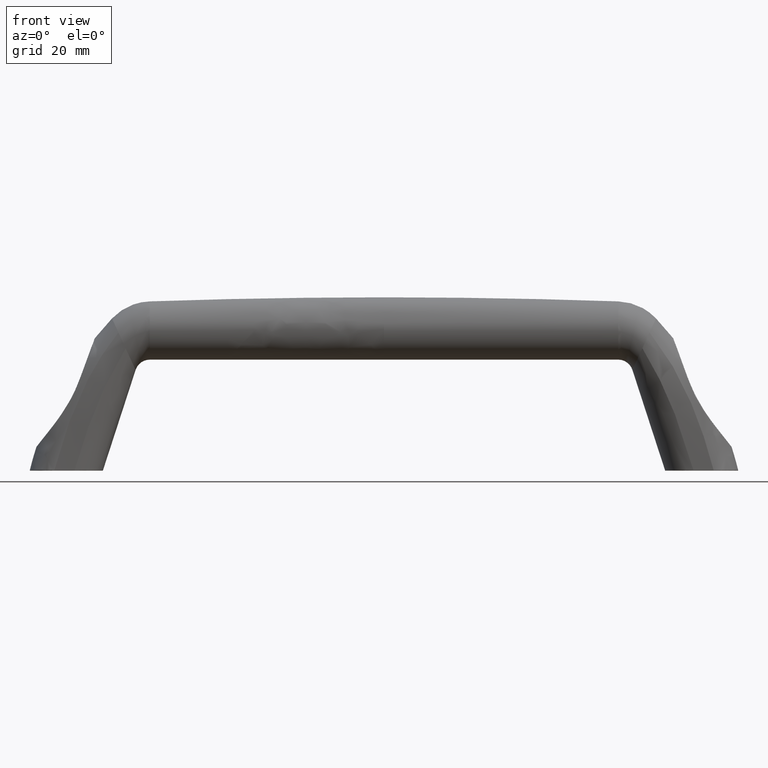
[diagram: clean part render]
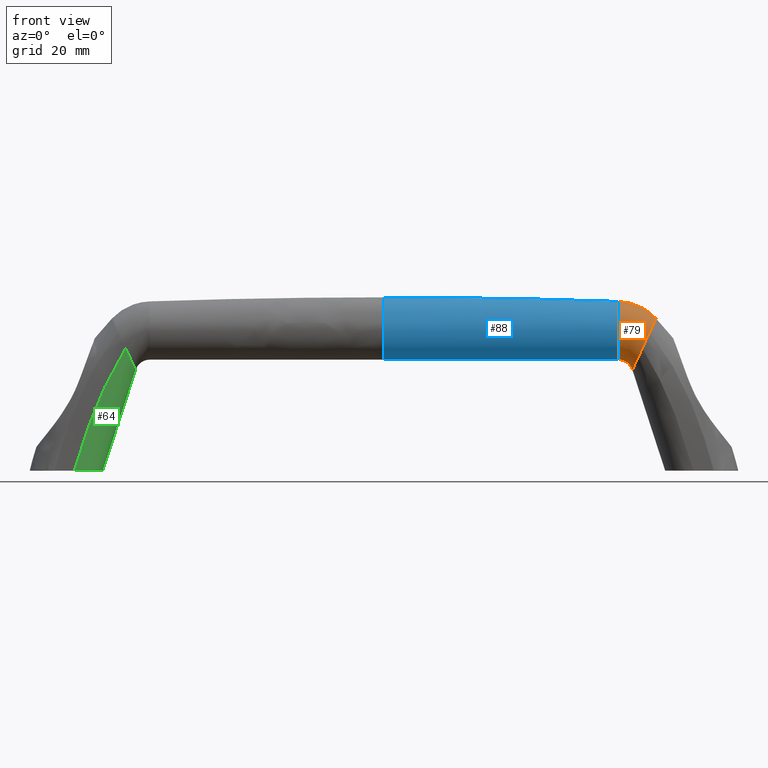
[diagram: same view with three faces highlighted in distinct colors, each labeled with its STEP entity id]
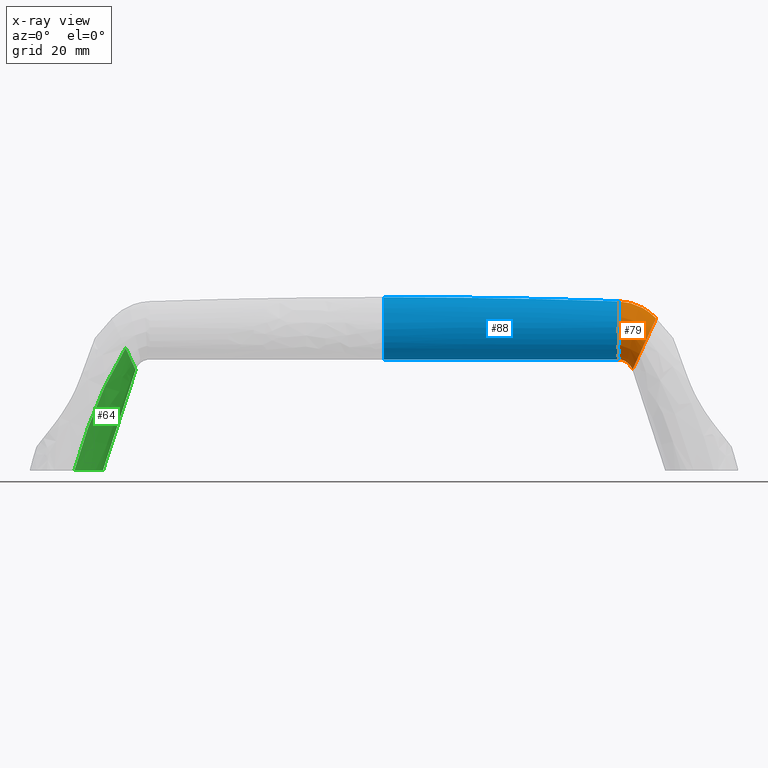
[diagram: x-ray of the same camera — body ghosted, the three highlighted faces saturated]
A machine part, front view with three faces highlighted in distinct colors.
The next image is the same camera in x-ray (body ghosted, the three faces saturated) — at least one of them is partly hidden behind the body in this view.
Their STEP definitions:

[orange] entity #79 — the highlighted face is a freeform B-spline surface patch.
#79=ADVANCED_FACE('',(#498),#497,.T.);
#497=( BOUNDED_SURFACE() B_SPLINE_SURFACE( 2,3,((#6205,#6206,#6207,#6208,#6209,#6210,#6211,#6212,#6213,#6214,#6215,#6216,#6217,#6218),(#6219,#6220,#6221,#6222,#6223,#6224,#6225,#6226,#6227,#6228,#6229,#6230,#6231,#6232),(#6233,#6234,#6235,#6236,#6237,#6238,#6239,#6240,#6241,#6242,#6243,#6244,#6245,#6246),(#6247,#6248,#6249,#6250,#6251,#6252,#6253,#6254,#6255,#6256,#6257,#6258,#6259,#6260),(#6261,#6262,#6263,#6264,#6265,#6266,#6267,#6268,#6269,#6270,#6271,#6272,#6273,#6274),(#6275,#6276,#6277,#6278,#6279,#6280,#6281,#6282,#6283,#6284,#6285,#6286,#6287,#6288),(#6289,#6290,#6291,#6292,#6293,#6294,#6295,#6296,#6297,#6298,#6299,#6300,#6301,#6302),(#6303,#6304,#6305,#6306,#6307,#6308,#6309,#6310,#6311,#6312,#6313,#6314,#6315,#6316),(#6317,#6318,#6319,#6320,#6321,#6322,#6323,#6324,#6325,#6326,#6327,#6328,#6329,#6330)), .UNSPECIFIED.,.F.,.F.,.F.) B_SPLINE_SURFACE_WITH_KNOTS((3,2,2,2,3),(4,2,2,2,2,2,4),(1.03633797698E+01,2.07267595396E+01,2.18161427625E+01,3.27543445763E+01,4.36925463901E+01),(0.00000000000E+00,7.06823018655E-01,1.41364603731E+00,2.82729207462E+00,5.65458414924E+00,8.48187622386E+00,1.13091682985E+01), .UNSPECIFIED. ) GEOMETRIC_REPRESENTATION_ITEM() RATIONAL_B_SPLINE_SURFACE(((1.00000000000E+00,1.00000000000E+00,1.00000000000E+00,1.00000000000E+00,1.00000000000E+00,1.00000000000E+00,1.00000000000E+00,1.00000000000E+00,1.00000000000E+00,1.00000000000E+00,1.00000000000E+00,1.00000000000E+00,1.00000000000E+00,1.00000000000E+00),(8.68727517694E-01,8.68727517694E-01,8.68727517694E-01,8.68727517694E-01,8.68727517694E-01,8.68727517694E-01,8.68727517694E-01,8.68727517694E-01,8.68727517694E-01,8.68727517694E-01,8.68727517694E-01,8.68727517694E-01,8.68727517694E-01,8.68727517694E-01),(1.00000000000E+00,1.00000000000E+00,1.00000000000E+00,1.00000000000E+00,1.00000000000E+00,1.00000000000E+00,1.00000000000E+00,1.00000000000E+00,1.00000000000E+00,1.00000000000E+00,1.00000000000E+00,1.00000000000E+00,1.00000000000E+00,1.00000000000E+00),(9.99940662797E-01,9.99940662797E-01,9.99940662797E-01,9.99940662797E-01,9.99940662797E-01,9.99940662797E-01,9.99940662797E-01,9.99940662797E-01,9.99940662797E-01,9.99940662797E-01,9.99940662797E-01,9.99940662797E-01,9.99940662797E-01,9.99940662797E-01),(1.00000000000E+00,1.00000000000E+00,1.00000000000E+00,1.00000000000E+00,1.00000000000E+00,1.00000000000E+00,1.00000000000E+00,1.00000000000E+00,1.00000000000E+00,1.00000000000E+00,1.00000000000E+00,1.00000000000E+00,1.00000000000E+00,1.00000000000E+00),(8.67388181384E-01,8.67388181384E-01,8.67388181384E-01,8.67388181384E-01,8.67388181384E-01,8.67388181384E-01,8.67388181384E-01,8.67388181384E-01,8.67388181384E-01,8.67388181384E-01,8.67388181384E-01,8.67388181384E-01,8.67388181384E-01,8.67388181384E-01),(1.00000000000E+00,1.00000000000E+00,1.00000000000E+00,1.00000000000E+00,1.00000000000E+00,1.00000000000E+00,1.00000000000E+00,1.00000000000E+00,1.00000000000E+00,1.00000000000E+00,1.00000000000E+00,1.00000000000E+00,1.00000000000E+00,1.00000000000E+00),(8.67388181384E-01,8.67388181384E-01,8.67388181384E-01,8.67388181384E-01,8.67388181384E-01,8.67388181384E-01,8.67388181384E-01,8.67388181384E-01,8.67388181384E-01,8.67388181384E-01,8.67388181384E-01,8.67388181384E-01,8.67388181384E-01,8.67388181384E-01),(1.00000000000E+00,1.00000000000E+00,1.00000000000E+00,1.00000000000E+00,1.00000000000E+00,1.00000000000E+00,1.00000000000E+00,1.00000000000E+00,1.00000000000E+00,1.00000000000E+00,1.00000000000E+00,1.00000000000E+00,1.00000000000E+00,1.00000000000E+00))) REPRESENTATION_ITEM('') SURFACE() );
#498=FACE_OUTER_BOUND('',#6331,.T.);
#6205=CARTESIAN_POINT('',(8.64793212583E+01,-1.20000000040E+01,3.04999998403E+01));
#6206=CARTESIAN_POINT('',(8.68063287243E+01,-1.20000000040E+01,3.04894546349E+01));
#6207=CARTESIAN_POINT('',(8.71332154277E+01,-1.20000000040E+01,3.04711196048E+01));
#6208=CARTESIAN_POINT('',(8.77855020975E+01,-1.20000000040E+01,3.04182375635E+01));
#6209=CARTESIAN_POINT('',(8.81110062732E+01,-1.20000000040E+01,3.03838100754E+01));
#6210=CARTESIAN_POINT('',(8.90844078928E+01,-1.20000000040E+01,3.02566251356E+01));
#6211=CARTESIAN_POINT('',(8.97291880379E+01,-1.20000000040E+01,3.01399255621E+01));
#6212=CARTESIAN_POINT('',(9.16416964548E+01,-1.20000000040E+01,2.96960551584E+01));
#6213=CARTESIAN_POINT('',(9.28874948244E+01,-1.20000000040E+01,2.92744838235E+01));
#6214=CARTESIAN_POINT('',(9.52730549248E+01,-1.20000000040E+01,2.81964471844E+01));
#6215=CARTESIAN_POINT('',(9.64127035406E+01,-1.20000000040E+01,2.75399802797E+01));
#6216=CARTESIAN_POINT('',(9.85421024446E+01,-1.20000000040E+01,2.60172746679E+01));
#6217=CARTESIAN_POINT('',(9.95318647826E+01,-1.20000000040E+01,2.51511203580E+01));
#6218=CARTESIAN_POINT('',(1.00427498075E+02,-1.20000000040E+01,2.41966410031E+01));
#6219=CARTESIAN_POINT('',(8.64793212583E+01,-1.77013310752E+01,3.04999998403E+01));
#6220=CARTESIAN_POINT('',(8.68063287243E+01,-1.76985284762E+01,3.04894546349E+01));
#6221=CARTESIAN_POINT('',(8.71332154277E+01,-1.76957807205E+01,3.04711196048E+01));
#6222=CARTESIAN_POINT('',(8.77855020975E+01,-1.76902137696E+01,3.04182375635E+01));
#6223=CARTESIAN_POINT('',(8.81110062732E+01,-1.76874278980E+01,3.03838100754E+01));
#6224=CARTESIAN_POINT('',(8.90844078928E+01,-1.76790294823E+01,3.02566251356E+01));
#6225=CARTESIAN_POINT('',(8.97291880379E+01,-1.76733935181E+01,3.01399255621E+01));
#6226=CARTESIAN_POINT('',(9.16416964548E+01,-1.76562711348E+01,2.96960551584E+01));
#6227=CARTESIAN_POINT('',(9.28874948244E+01,-1.76446056985E+01,2.92744838235E+01));
#6228=CARTESIAN_POINT('',(9.52730549248E+01,-1.76197808828E+01,2.81964471844E+01));
#6229=CARTESIAN_POINT('',(9.64127035406E+01,-1.76066127769E+01,2.75399802797E+01));
#6230=CARTESIAN_POINT('',(9.85421024446E+01,-1.75772419985E+01,2.60172746679E+01));
#6231=CARTESIAN_POINT('',(9.95318647826E+01,-1.75610221213E+01,2.51511203580E+01));
#6232=CARTESIAN_POINT('',(1.00427498075E+02,-1.75423759172E+01,2.41966410031E+01));
#6233=CARTESIAN_POINT('',(8.64799281797E+01,-2.06054465896E+01,2.55937498778E+01));
#6234=CARTESIAN_POINT('',(8.67651739687E+01,-2.06012164167E+01,2.55856111914E+01));
#6235=CARTESIAN_POINT('',(8.70503192412E+01,-2.05970690230E+01,2.55701691171E+01));
#6236=CARTESIAN_POINT('',(8.76192706921E+01,-2.05886664065E+01,2.55241990147E+01));
#6237=CARTESIAN_POINT('',(8.79031529927E+01,-2.05844614815E+01,2.54937614410E+01));
#6238=CARTESIAN_POINT('',(8.87517850725E+01,-2.05717851229E+01,2.53801848985E+01));
#6239=CARTESIAN_POINT('',(8.93135226291E+01,-2.05632783394E+01,2.52747189579E+01));
#6240=CARTESIAN_POINT('',(9.09771230890E+01,-2.05374342421E+01,2.48712529276E+01));
#6241=CARTESIAN_POINT('',(9.20571672555E+01,-2.05198267242E+01,2.44854693553E+01));
#6242=CARTESIAN_POINT('',(9.41110258939E+01,-2.04823567679E+01,2.34989246055E+01));
#6243=CARTESIAN_POINT('',(9.50846872122E+01,-2.04624811581E+01,2.28981844026E+01));
#6244=CARTESIAN_POINT('',(9.68826690002E+01,-2.04181496394E+01,2.15102834662E+01));
#6245=CARTESIAN_POINT('',(9.77069948351E+01,-2.03936677622E+01,2.07232509115E+01));
#6246=CARTESIAN_POINT('',(9.84388223534E+01,-2.03655236480E+01,1.98615589361E+01));
#6247=CARTESIAN_POINT('',(8.64799861658E+01,-2.08829098553E+01,2.51249998814E+01));
#6248=CARTESIAN_POINT('',(8.67612419857E+01,-2.08785432900E+01,2.51170911172E+01));
#6249=CARTESIAN_POINT('',(8.70423992233E+01,-2.08742621729E+01,2.51019254400E+01));
#6250=CARTESIAN_POINT('',(8.76033887107E+01,-2.08655886329E+01,2.50566157139E+01));
#6251=CARTESIAN_POINT('',(8.78832943990E+01,-2.08612481296E+01,2.50265593421E+01));
#6252=CARTESIAN_POINT('',(8.87200058222E+01,-2.08481630503E+01,2.49142829651E+01));
#6253=CARTESIAN_POINT('',(8.92738093734E+01,-2.08393819847E+01,2.48098903014E+01));
#6254=CARTESIAN_POINT('',(9.09136288184E+01,-2.08127046027E+01,2.44102845616E+01));
#6255=CARTESIAN_POINT('',(9.19778365960E+01,-2.07945293699E+01,2.40279202023E+01));
#6256=CARTESIAN_POINT('',(9.40000040119E+01,-2.07558512792E+01,2.30501167158E+01));
#6257=CARTESIAN_POINT('',(9.49578066713E+01,-2.07353348251E+01,2.24547007201E+01));
#6258=CARTESIAN_POINT('',(9.67241244036E+01,-2.06895739363E+01,2.10796792113E+01));
#6259=CARTESIAN_POINT('',(9.75326442032E+01,-2.06643026961E+01,2.03002060599E+01));
#6260=CARTESIAN_POINT('',(9.82488214883E+01,-2.06352511382E+01,1.94473791208E+01));
#6261=CARTESIAN_POINT('',(8.64800448859E+01,-2.11500951077E+01,2.46503163408E+01));
#6262=CARTESIAN_POINT('',(8.67572602308E+01,-2.11455972023E+01,2.46426404091E+01));
#6263=CARTESIAN_POINT('',(8.70343789521E+01,-2.11411873153E+01,2.46277546276E+01));
#6264=CARTESIAN_POINT('',(8.75873056916E+01,-2.11322528876E+01,2.45831136371E+01));
#6265=CARTESIAN_POINT('',(8.78631844308E+01,-2.11277818282E+01,2.45534432927E+01));
#6266=CARTESIAN_POINT('',(8.86878243028E+01,-2.11143031684E+01,2.44424835388E+01));
#6267=CARTESIAN_POINT('',(8.92335934184E+01,-2.11052579809E+01,2.43391777379E+01));
#6268=CARTESIAN_POINT('',(9.08493308229E+01,-2.10777781812E+01,2.39434811530E+01));
#6269=CARTESIAN_POINT('',(9.18975017510E+01,-2.10590562634E+01,2.35645792879E+01));
#6270=CARTESIAN_POINT('',(9.38875767897E+01,-2.10192147909E+01,2.25956277136E+01));
#6271=CARTESIAN_POINT('',(9.48293200476E+01,-2.09980812311E+01,2.20056033200E+01));
#6272=CARTESIAN_POINT('',(9.65635729134E+01,-2.09509439201E+01,2.06436242695E+01));
#6273=CARTESIAN_POINT('',(9.73560866013E+01,-2.09249125571E+01,1.98718062102E+01));
#6274=CARTESIAN_POINT('',(9.80564155489E+01,-2.08949871698E+01,1.90279565230E+01));
#6275=CARTESIAN_POINT('',(8.64806942724E+01,-2.41049001581E+01,1.94007851227E+01));
#6276=CARTESIAN_POINT('',(8.67132259529E+01,-2.40989497615E+01,1.93956840897E+01));
#6277=CARTESIAN_POINT('',(8.69456826724E+01,-2.40931158065E+01,1.93838936788E+01));
#6278=CARTESIAN_POINT('',(8.74094433815E+01,-2.40812962185E+01,1.93466482429E+01));
#6279=CARTESIAN_POINT('',(8.76407880398E+01,-2.40753813370E+01,1.93212469797E+01));
#6280=CARTESIAN_POINT('',(8.83319284776E+01,-2.40575500653E+01,1.92248477776E+01));
#6281=CARTESIAN_POINT('',(8.87888446679E+01,-2.40455839502E+01,1.91335616061E+01));
#6282=CARTESIAN_POINT('',(9.01382584851E+01,-2.40092302045E+01,1.87810964140E+01));
#6283=CARTESIAN_POINT('',(9.10090776943E+01,-2.39844624897E+01,1.84404863153E+01));
#6284=CARTESIAN_POINT('',(9.26442427320E+01,-2.39317551636E+01,1.75694281490E+01));
#6285=CARTESIAN_POINT('',(9.34083848676E+01,-2.39037970245E+01,1.70390295517E+01));
#6286=CARTESIAN_POINT('',(9.47880319733E+01,-2.38414378428E+01,1.58212872110E+01));
#6287=CARTESIAN_POINT('',(9.54035338713E+01,-2.38070002717E+01,1.51341269101E+01));
#6288=CARTESIAN_POINT('',(9.59285958570E+01,-2.37674111941E+01,1.43895567640E+01));
#6289=CARTESIAN_POINT('',(8.64813375803E+01,-2.10644449066E+01,1.42003925638E+01));
#6290=CARTESIAN_POINT('',(8.66696038615E+01,-2.10599891043E+01,1.41978423269E+01));
#6291=CARTESIAN_POINT('',(8.68578166413E+01,-2.10556204963E+01,1.41891183121E+01));
#6292=CARTESIAN_POINT('',(8.72332459659E+01,-2.10467697001E+01,1.41591992041E+01));
#6293=CARTESIAN_POINT('',(8.74204734081E+01,-2.10423404923E+01,1.41380270611E+01));
#6294=CARTESIAN_POINT('',(8.79793640439E+01,-2.10289880006E+01,1.40560521156E+01));
#6295=CARTESIAN_POINT('',(8.83482590239E+01,-2.10200274813E+01,1.39766730628E+01));
#6296=CARTESIAN_POINT('',(8.94338421972E+01,-2.09928049085E+01,1.36670345926E+01));
#6297=CARTESIAN_POINT('',(9.01289698025E+01,-2.09742582388E+01,1.33643578271E+01));
#6298=CARTESIAN_POINT('',(9.14125470026E+01,-2.09347897056E+01,1.25902767297E+01));
#6299=CARTESIAN_POINT('',(9.20007504655E+01,-2.09138539682E+01,1.21189457965E+01));
#6300=CARTESIAN_POINT('',(9.30291111269E+01,-2.08671578897E+01,1.10440900260E+01));
#6301=CARTESIAN_POINT('',(9.34692581682E+01,-2.08413701954E+01,1.04407950380E+01));
#6302=CARTESIAN_POINT('',(9.38206937924E+01,-2.08117249271E+01,9.79457511899E+00));
#6303=CARTESIAN_POINT('',(8.64819808882E+01,-1.80239896551E+01,9.00000000499E+00));
#6304=CARTESIAN_POINT('',(8.66259817701E+01,-1.80210284471E+01,9.00000056399E+00));
#6305=CARTESIAN_POINT('',(8.67699506102E+01,-1.80181251861E+01,8.99434294499E+00));
#6306=CARTESIAN_POINT('',(8.70570485503E+01,-1.80122431817E+01,8.97175016499E+00));
#6307=CARTESIAN_POINT('',(8.72001587765E+01,-1.80092996477E+01,8.95480714299E+00));
#6308=CARTESIAN_POINT('',(8.76267996102E+01,-1.80004259359E+01,8.88725645399E+00));
#6309=CARTESIAN_POINT('',(8.79076733800E+01,-1.79944710124E+01,8.81978451899E+00));
#6310=CARTESIAN_POINT('',(8.87294259092E+01,-1.79763796126E+01,8.55297277099E+00));
#6311=CARTESIAN_POINT('',(8.92488619107E+01,-1.79640539879E+01,8.28822933899E+00));
#6312=CARTESIAN_POINT('',(9.01808512733E+01,-1.79378242476E+01,7.61112530999E+00));
#6313=CARTESIAN_POINT('',(9.05931160635E+01,-1.79239109118E+01,7.19886204099E+00));
#6314=CARTESIAN_POINT('',(9.12701902806E+01,-1.78928779367E+01,6.26689284199E+00));
#6315=CARTESIAN_POINT('',(9.15349824652E+01,-1.78757401190E+01,5.74746316599E+00));
#6316=CARTESIAN_POINT('',(9.17127917278E+01,-1.78560386600E+01,5.19959347399E+00));
#6317=CARTESIAN_POINT('',(8.64819808882E+01,-1.20000000040E+01,9.00000000499E+00));
#6318=CARTESIAN_POINT('',(8.66259817701E+01,-1.20000000040E+01,9.00000056399E+00));
#6319=CARTESIAN_POINT('',(8.67699506102E+01,-1.20000000040E+01,8.99434294499E+00));
#6320=CARTESIAN_POINT('',(8.70570485503E+01,-1.20000000040E+01,8.97175016499E+00));
#6321=CARTESIAN_POINT('',(8.72001587765E+01,-1.20000000040E+01,8.95480714299E+00));
#6322=CARTESIAN_POINT('',(8.76267996102E+01,-1.20000000040E+01,8.88725645399E+00));
#6323=CARTESIAN_POINT('',(8.79076733800E+01,-1.20000000040E+01,8.81978451899E+00));
#6324=CARTESIAN_POINT('',(8.87294259092E+01,-1.20000000040E+01,8.55297277099E+00));
#6325=CARTESIAN_POINT('',(8.92488619107E+01,-1.20000000040E+01,8.28822933899E+00));
#6326=CARTESIAN_POINT('',(9.01808512733E+01,-1.20000000040E+01,7.61112530999E+00));
#6327=CARTESIAN_POINT('',(9.05931160635E+01,-1.20000000040E+01,7.19886204099E+00));
#6328=CARTESIAN_POINT('',(9.12701902806E+01,-1.20000000040E+01,6.26689284199E+00));
#6329=CARTESIAN_POINT('',(9.15349824652E+01,-1.20000000040E+01,5.74746316599E+00));
#6330=CARTESIAN_POINT('',(9.17127917278E+01,-1.20000000040E+01,5.19959347399E+00));
#6331=EDGE_LOOP('',(#7598,#7599,#7600,#7601,#7602,#7603));
#7598=ORIENTED_EDGE('',*,*,#7820,.T.);
#7599=ORIENTED_EDGE('',*,*,#7808,.F.);
#7600=ORIENTED_EDGE('',*,*,#7821,.T.);
#7601=ORIENTED_EDGE('',*,*,#7822,.T.);
#7602=ORIENTED_EDGE('',*,*,#7787,.F.);
#7603=ORIENTED_EDGE('',*,*,#7805,.F.);
#7787=EDGE_CURVE('',#8381,#8345,#8388,.T.);
#7805=EDGE_CURVE('',#8503,#8381,#8510,.T.);
#7808=EDGE_CURVE('',#8522,#8502,#8529,.T.);
#7820=EDGE_CURVE('',#8503,#8502,#8603,.T.);
#7821=EDGE_CURVE('',#8522,#8609,#8610,.T.);
#7822=EDGE_CURVE('',#8609,#8345,#8616,.T.);
#8345=VERTEX_POINT('',#9796);
#8381=VERTEX_POINT('',#9905);
#8388=(BOUNDED_CURVE() B_SPLINE_CURVE(2,(#9910,#9911,#9912,#9913,#9914),.UNSPECIFIED.,.F.,.F.) B_SPLINE_CURVE_WITH_KNOTS((3,2,3),(0.00000000000E+00,1.10847518264E+01,1.21438045487E+01),.UNSPECIFIED.) CURVE() GEOMETRIC_REPRESENTATION_ITEM() RATIONAL_B_SPLINE_CURVE((1.00000000000E+00,8.68727517694E-01,1.00000000000E+00,9.99940662797E-01,1.00000000000E+00)) REPRESENTATION_ITEM('') );
#8502=VERTEX_POINT('',#10202);
#8503=VERTEX_POINT('',#10203);
#8510=(BOUNDED_CURVE() B_SPLINE_CURVE(3,(#10220,#10221,#10222,#10223,#10224,#10225,#10226,#10227,#10228,#10229,#10230,#10231,#10232,#10233,#10234,#10235,#10236,#10237,#10238),.UNSPECIFIED.,.F.,.F.) B_SPLINE_CURVE_WITH_KNOTS((4,3,3,3,3,3,4),(0.00000000000E+00,7.06009114622E-01,1.41199446521E+00,2.82442301222E+00,5.65265948976E+00,8.48090986406E+00,1.13091682985E+01),.UNSPECIFIED.) CURVE() GEOMETRIC_REPRESENTATION_ITEM() RATIONAL_B_SPLINE_CURVE((1.00000000000E+00,1.00000000000E+00,1.00000000000E+00,1.00000000000E+00,1.00000000000E+00,1.00000000000E+00,1.00000000000E+00,1.00000000000E+00,1.00000000000E+00,1.00000000000E+00,1.00000000000E+00,1.00000000000E+00,1.00000000000E+00,1.00000000000E+00,1.00000000000E+00,1.00000000000E+00,1.00000000000E+00,1.00000000000E+00,1.00000000000E+00)) REPRESENTATION_ITEM('') );
#8522=VERTEX_POINT('',#10245);
#8529=(BOUNDED_CURVE() B_SPLINE_CURVE(3,(#10250,#10251,#10252,#10253,#10254,#10255,#10256,#10257,#10258,#10259,#10260,#10261,#10262,#10263,#10264,#10265,#10266,#10267,#10268),.UNSPECIFIED.,.F.,.F.) B_SPLINE_CURVE_WITH_KNOTS((4,3,3,3,3,3,4),(-1.13091682985E+01,-8.47941535736E+00,-5.64967326915E+00,-2.81994058955E+00,-1.40942598414E+00,-7.04701582862E-01,0.00000000000E+00),.UNSPECIFIED.) CURVE() GEOMETRIC_REPRESENTATION_ITEM() RATIONAL_B_SPLINE_CURVE((1.00000000000E+00,1.00000000000E+00,1.00000000000E+00,1.00000000000E+00,1.00000000000E+00,1.00000000000E+00,1.00000000000E+00,1.00000000000E+00,1.00000000000E+00,1.00000000000E+00,1.00000000000E+00,1.00000000000E+00,1.00000000000E+00,1.00000000000E+00,1.00000000000E+00,1.00000000000E+00,1.00000000000E+00,1.00000000000E+00,1.00000000000E+00)) REPRESENTATION_ITEM('') );
#8603=(BOUNDED_CURVE() B_SPLINE_CURVE(2,(#10410,#10411,#10412,#10413,#10414,#10415,#10416,#10417,#10418,#10419,#10420,#10421,#10422,#10423,#10424,#10425,#10426),.UNSPECIFIED.,.F.,.F.) B_SPLINE_CURVE_WITH_KNOTS((3,2,2,2,2,2,2,2,3),(1.03633797698E+01,1.04099683655E+01,2.05099079106E+01,2.07491843420E+01,2.14348557964E+01,2.17499938154E+01,2.23621301511E+01,3.30273382706E+01,4.36925463901E+01),.UNSPECIFIED.) CURVE() GEOMETRIC_REPRESENTATION_ITEM() RATIONAL_B_SPLINE_CURVE((1.00000000000E+00,9.99996785312E-01,1.00000000000E+00,8.76327657621E-01,1.00000000000E+00,9.99915213776E-01,1.00000000000E+00,9.99972148110E-01,1.00000000000E+00,9.99994116464E-01,1.00000000000E+00,9.99496996933E-01,1.00000000000E+00,8.75170948248E-01,1.00000000000E+00,8.75170948248E-01,1.00000000000E+00)) REPRESENTATION_ITEM('') );
#8609=VERTEX_POINT('',#10427);
#8610=CIRCLE('',#10431,1.02072562287E+01);
#8616=CIRCLE('',#10435,1.02072562285E+01);
#9796=CARTESIAN_POINT('',(9.80564155489E+01,-2.08949871698E+01,1.90279565230E+01));
#9905=CARTESIAN_POINT('',(1.00427498075E+02,-1.20000000040E+01,2.41966410031E+01));
#9910=CARTESIAN_POINT('',(1.00427498075E+02,-1.20000000040E+01,2.41966410031E+01));
#9911=CARTESIAN_POINT('',(1.00427498075E+02,-1.75423759172E+01,2.41966410031E+01));
#9912=CARTESIAN_POINT('',(9.84388223534E+01,-2.03655236480E+01,1.98615589361E+01));
#9913=CARTESIAN_POINT('',(9.82488214883E+01,-2.06352511382E+01,1.94473791208E+01));
#9914=CARTESIAN_POINT('',(9.80564155489E+01,-2.08949871698E+01,1.90279565230E+01));
#10202=CARTESIAN_POINT('',(8.64819808882E+01,-1.20000000040E+01,9.00000000499E+00));
#10203=CARTESIAN_POINT('',(8.64793212583E+01,-1.20000000040E+01,3.04999998403E+01));
#10220=CARTESIAN_POINT('',(8.64793212583E+01,-1.20000000040E+01,3.04999998403E+01));
#10221=CARTESIAN_POINT('',(8.68063287243E+01,-1.20000000040E+01,3.04894546349E+01));
#10222=CARTESIAN_POINT('',(8.71332154277E+01,-1.20000000040E+01,3.04711196048E+01));
#10223=CARTESIAN_POINT('',(8.74593587626E+01,-1.20000000040E+01,3.04446785841E+01));
#10224=CARTESIAN_POINT('',(8.77855020975E+01,-1.20000000040E+01,3.04182375635E+01));
#10225=CARTESIAN_POINT('',(8.81110062732E+01,-1.20000000040E+01,3.03838100754E+01));
#10226=CARTESIAN_POINT('',(8.84354734798E+01,-1.20000000040E+01,3.03414150954E+01));
#10227=CARTESIAN_POINT('',(8.90844078928E+01,-1.20000000040E+01,3.02566251356E+01));
#10228=CARTESIAN_POINT('',(8.97291880379E+01,-1.20000000040E+01,3.01399255621E+01));
#10229=CARTESIAN_POINT('',(9.03666908436E+01,-1.20000000040E+01,2.99919687609E+01));
#10230=CARTESIAN_POINT('',(9.16416964548E+01,-1.20000000040E+01,2.96960551584E+01));
#10231=CARTESIAN_POINT('',(9.28874948244E+01,-1.20000000040E+01,2.92744838235E+01));
#10232=CARTESIAN_POINT('',(9.40802748746E+01,-1.20000000040E+01,2.87354655040E+01));
#10233=CARTESIAN_POINT('',(9.52730549248E+01,-1.20000000040E+01,2.81964471844E+01));
#10234=CARTESIAN_POINT('',(9.64127035406E+01,-1.20000000040E+01,2.75399802797E+01));
#10235=CARTESIAN_POINT('',(9.74774029926E+01,-1.20000000040E+01,2.67786274738E+01));
#10236=CARTESIAN_POINT('',(9.85421024446E+01,-1.20000000040E+01,2.60172746679E+01));
#10237=CARTESIAN_POINT('',(9.95318647826E+01,-1.20000000040E+01,2.51511203580E+01));
#10238=CARTESIAN_POINT('',(1.00427498075E+02,-1.20000000040E+01,2.41966410031E+01));
#10245=CARTESIAN_POINT('',(9.17127917278E+01,-1.20000000040E+01,5.19959347399E+00));
#10250=CARTESIAN_POINT('',(9.17127917278E+01,-1.20000000040E+01,5.19959347399E+00));
#10251=CARTESIAN_POINT('',(9.15349824652E+01,-1.20000000040E+01,5.74746316599E+00));
#10252=CARTESIAN_POINT('',(9.12701902806E+01,-1.20000000040E+01,6.26689284199E+00));
#10253=CARTESIAN_POINT('',(9.09316531721E+01,-1.20000000040E+01,6.73287744099E+00));
#10254=CARTESIAN_POINT('',(9.05931160635E+01,-1.20000000040E+01,7.19886204099E+00));
#10255=CARTESIAN_POINT('',(9.01808512733E+01,-1.20000000040E+01,7.61112530999E+00));
#10256=CARTESIAN_POINT('',(8.97148565920E+01,-1.20000000040E+01,7.94967732499E+00));
#10257=CARTESIAN_POINT('',(8.92488619107E+01,-1.20000000040E+01,8.28822933899E+00));
#10258=CARTESIAN_POINT('',(8.87294259092E+01,-1.20000000040E+01,8.55297277099E+00));
#10259=CARTESIAN_POINT('',(8.81815908897E+01,-1.20000000040E+01,8.73084726999E+00));
#10260=CARTESIAN_POINT('',(8.79076733800E+01,-1.20000000040E+01,8.81978451899E+00));
#10261=CARTESIAN_POINT('',(8.76267996102E+01,-1.20000000040E+01,8.88725645399E+00));
#10262=CARTESIAN_POINT('',(8.73423723877E+01,-1.20000000040E+01,8.93229024599E+00));
#10263=CARTESIAN_POINT('',(8.72001587765E+01,-1.20000000040E+01,8.95480714299E+00));
#10264=CARTESIAN_POINT('',(8.70570485503E+01,-1.20000000040E+01,8.97175016499E+00));
#10265=CARTESIAN_POINT('',(8.69134995802E+01,-1.20000000040E+01,8.98304655499E+00));
#10266=CARTESIAN_POINT('',(8.67699506102E+01,-1.20000000040E+01,8.99434294499E+00));
#10267=CARTESIAN_POINT('',(8.66259817701E+01,-1.20000000040E+01,9.00000056399E+00));
#10268=CARTESIAN_POINT('',(8.64819808882E+01,-1.20000000040E+01,9.00000000499E+00));
#10410=CARTESIAN_POINT('',(8.64793212583E+01,-1.20000000040E+01,3.04999998403E+01));
#10411=CARTESIAN_POINT('',(8.64793212583E+01,-1.20253562502E+01,3.04999998404E+01));
#10412=CARTESIAN_POINT('',(8.64793212743E+01,-1.20507121704E+01,3.04998712533E+01));
#10413=CARTESIAN_POINT('',(8.64793247227E+01,-1.75476209538E+01,3.04719948797E+01));
#10414=CARTESIAN_POINT('',(8.64799006718E+01,-2.04698806686E+01,2.58161189049E+01));
#10415=CARTESIAN_POINT('',(8.64799143166E+01,-2.05391115657E+01,2.57058171171E+01));
#10416=CARTESIAN_POINT('',(8.64799281797E+01,-2.06054465896E+01,2.55937498778E+01));
#10417=CARTESIAN_POINT('',(8.64799679059E+01,-2.07955364869E+01,2.52726095696E+01));
#10418=CARTESIAN_POINT('',(8.64800079788E+01,-2.09808117148E+01,2.49486676665E+01));
#10419=CARTESIAN_POINT('',(8.64800263964E+01,-2.10659651333E+01,2.47997823528E+01));
#10420=CARTESIAN_POINT('',(8.64800448859E+01,-2.11500951077E+01,2.46503163408E+01));
#10421=CARTESIAN_POINT('',(8.64800808007E+01,-2.13135124396E+01,2.43599877503E+01));
#10422=CARTESIAN_POINT('',(8.64801179247E+01,-2.14581955831E+01,2.40598832640E+01));
#10423=CARTESIAN_POINT('',(8.64807647342E+01,-2.39789997681E+01,1.88311840059E+01));
#10424=CARTESIAN_POINT('',(8.64813728112E+01,-2.08918157755E+01,1.39155920054E+01));
#10425=CARTESIAN_POINT('',(8.64819808882E+01,-1.78046317829E+01,9.00000000493E+00));
#10426=CARTESIAN_POINT('',(8.64819808882E+01,-1.20000000040E+01,9.00000000499E+00));
#10427=CARTESIAN_POINT('',(9.53852720783E+01,-2.21108584045E+01,1.32051740394E+01));
#10428=CARTESIAN_POINT('',(9.59688111066E+01,-1.20000000041E+01,1.44772213370E+01));
#10429=DIRECTION('',(-9.08924754624E-01,-1.14171162133E-11,4.16960178472E-01));
#10430=DIRECTION('',(4.16960178472E-01,-9.01330106397E-12,9.08924754624E-01));
#10431=AXIS2_PLACEMENT_3D('',#10428,#10429,#10430);
#10432=CARTESIAN_POINT('',(9.59688111062E+01,-1.20000000043E+01,1.44772213373E+01));
#10433=DIRECTION('',(-9.08924754617E-01,-6.47789322183E-11,4.16960178487E-01));
#10434=DIRECTION('',(5.71690388510E-02,9.90555950969E-01,1.24621864040E-01));
#10435=AXIS2_PLACEMENT_3D('',#10432,#10433,#10434);

[blue] entity #88 — the highlighted face is a freeform B-spline surface patch.
#88=ADVANCED_FACE('',(#588),#587,.T.);
#587=( BOUNDED_SURFACE() B_SPLINE_SURFACE( 3,3,((#6944,#6945,#6946,#6947,#6948,#6949,#6950,#6951,#6952),(#6953,#6954,#6955,#6956,#6957,#6958,#6959,#6960,#6961),(#6962,#6963,#6964,#6965,#6966,#6967,#6968,#6969,#6970),(#6971,#6972,#6973,#6974,#6975,#6976,#6977,#6978,#6979),(#6980,#6981,#6982,#6983,#6984,#6985,#6986,#6987,#6988),(#6989,#6990,#6991,#6992,#6993,#6994,#6995,#6996,#6997),(#6998,#6999,#7000,#7001,#7002,#7003,#7004,#7005,#7006),(#7007,#7008,#7009,#7010,#7011,#7012,#7013,#7014,#7015),(#7016,#7017,#7018,#7019,#7020,#7021,#7022,#7023,#7024),(#7025,#7026,#7027,#7028,#7029,#7030,#7031,#7032,#7033),(#7034,#7035,#7036,#7037,#7038,#7039,#7040,#7041,#7042),(#7043,#7044,#7045,#7046,#7047,#7048,#7049,#7050,#7051),(#7052,#7053,#7054,#7055,#7056,#7057,#7058,#7059,#7060),(#7061,#7062,#7063,#7064,#7065,#7066,#7067,#7068,#7069),(#7070,#7071,#7072,#7073,#7074,#7075,#7076,#7077,#7078),(#7079,#7080,#7081,#7082,#7083,#7084,#7085,#7086,#7087),(#7088,#7089,#7090,#7091,#7092,#7093,#7094,#7095,#7096),(#7097,#7098,#7099,#7100,#7101,#7102,#7103,#7104,#7105),(#7106,#7107,#7108,#7109,#7110,#7111,#7112,#7113,#7114),(#7115,#7116,#7117,#7118,#7119,#7120,#7121,#7122,#7123),(#7124,#7125,#7126,#7127,#7128,#7129,#7130,#7131,#7132),(#7133,#7134,#7135,#7136,#7137,#7138,#7139,#7140,#7141),(#7142,#7143,#7144,#7145,#7146,#7147,#7148,#7149,#7150),(#7151,#7152,#7153,#7154,#7155,#7156,#7157,#7158,#7159),(#7160,#7161,#7162,#7163,#7164,#7165,#7166,#7167,#7168),(#7169,#7170,#7171,#7172,#7173,#7174,#7175,#7176,#7177),(#7178,#7179,#7180,#7181,#7182,#7183,#7184,#7185,#7186),(#7187,#7188,#7189,#7190,#7191,#7192,#7193,#7194,#7195),(#7196,#7197,#7198,#7199,#7200,#7201,#7202,#7203,#7204),(#7205,#7206,#7207,#7208,#7209,#7210,#7211,#7212,#7213),(#7214,#7215,#7216,#7217,#7218,#7219,#7220,#7221,#7222),(#7223,#7224,#7225,#7226,#7227,#7228,#7229,#7230,#7231),(#7232,#7233,#7234,#7235,#7236,#7237,#7238,#7239,#7240),(#7241,#7242,#7243,#7244,#7245,#7246,#7247,#7248,#7249),(#7250,#7251,#7252,#7253,#7254,#7255,#7256,#7257,#7258),(#7259,#7260,#7261,#7262,#7263,#7264,#7265,#7266,#7267)), .UNSPECIFIED.,.F.,.F.,.F.) B_SPLINE_SURFACE_WITH_KNOTS((4,1,1,1,1,1,1,1,1,1,1,1,1,1,1,1,1,1,1,1,1,1,1,1,1,1,1,1,1,1,1,1,1,4),(4,1,1,3,4),(-6.52533582723E-13,1.02902268458E+00,2.05804536917E+00,3.08706805375E+00,4.11609073834E+00,5.14511342292E+00,6.17413610750E+00,7.20315879209E+00,8.23218147667E+00,9.26120416125E+00,1.02902268458E+01,1.13192495304E+01,1.23482722150E+01,1.33772948996E+01,1.44063175842E+01,1.54353402688E+01,1.64643629533E+01,1.74933856379E+01,1.85224083225E+01,1.95514310071E+01,2.05804536917E+01,2.16094763763E+01,2.26384990608E+01,2.36675217454E+01,2.46965444300E+01,2.57255671146E+01,2.67545897992E+01,2.77836124838E+01,2.88126351683E+01,2.98416578529E+01,3.08706805375E+01,3.18997032221E+01,3.29287259067E+01,3.39577485913E+01),(0.00000000000E+00,2.88297743297E+01,5.76595486595E+01,8.64893229892E+01,8.65093213082E+01), .UNSPECIFIED. ) GEOMETRIC_REPRESENTATION_ITEM() RATIONAL_B_SPLINE_SURFACE(((1.00000000000E+00,1.00000000000E+00,1.00000000000E+00,1.00000000000E+00,1.00000000000E+00,1.00000000000E+00,1.00000000000E+00,1.00000000000E+00,1.00000000000E+00),(1.00000000000E+00,1.00000000000E+00,1.00000000000E+00,1.00000000000E+00,1.00000000000E+00,1.00000000000E+00,1.00000000000E+00,1.00000000000E+00,1.00000000000E+00),(1.00000000000E+00,1.00000000000E+00,1.00000000000E+00,1.00000000000E+00,1.00000000000E+00,1.00000000000E+00,1.00000000000E+00,1.00000000000E+00,1.00000000000E+00),(1.00000000000E+00,1.00000000000E+00,1.00000000000E+00,1.00000000000E+00,1.00000000000E+00,1.00000000000E+00,1.00000000000E+00,1.00000000000E+00,1.00000000000E+00),(1.00000000000E+00,1.00000000000E+00,1.00000000000E+00,1.00000000000E+00,1.00000000000E+00,1.00000000000E+00,1.00000000000E+00,1.00000000000E+00,1.00000000000E+00),(1.00000000000E+00,1.00000000000E+00,1.00000000000E+00,1.00000000000E+00,1.00000000000E+00,1.00000000000E+00,1.00000000000E+00,1.00000000000E+00,1.00000000000E+00),(1.00000000000E+00,1.00000000000E+00,1.00000000000E+00,1.00000000000E+00,1.00000000000E+00,1.00000000000E+00,1.00000000000E+00,1.00000000000E+00,1.00000000000E+00),(1.00000000000E+00,1.00000000000E+00,1.00000000000E+00,1.00000000000E+00,1.00000000000E+00,1.00000000000E+00,1.00000000000E+00,1.00000000000E+00,1.00000000000E+00),(1.00000000000E+00,1.00000000000E+00,1.00000000000E+00,1.00000000000E+00,1.00000000000E+00,1.00000000000E+00,1.00000000000E+00,1.00000000000E+00,1.00000000000E+00),(1.00000000000E+00,1.00000000000E+00,1.00000000000E+00,1.00000000000E+00,1.00000000000E+00,1.00000000000E+00,1.00000000000E+00,1.00000000000E+00,1.00000000000E+00),(1.00000000000E+00,1.00000000000E+00,1.00000000000E+00,1.00000000000E+00,1.00000000000E+00,1.00000000000E+00,1.00000000000E+00,1.00000000000E+00,1.00000000000E+00),(1.00000000000E+00,1.00000000000E+00,1.00000000000E+00,1.00000000000E+00,1.00000000000E+00,1.00000000000E+00,1.00000000000E+00,1.00000000000E+00,1.00000000000E+00),(1.00000000000E+00,1.00000000000E+00,1.00000000000E+00,1.00000000000E+00,1.00000000000E+00,1.00000000000E+00,1.00000000000E+00,1.00000000000E+00,1.00000000000E+00),(1.00000000000E+00,1.00000000000E+00,1.00000000000E+00,1.00000000000E+00,1.00000000000E+00,1.00000000000E+00,1.00000000000E+00,1.00000000000E+00,1.00000000000E+00),(1.00000000000E+00,1.00000000000E+00,1.00000000000E+00,1.00000000000E+00,1.00000000000E+00,1.00000000000E+00,1.00000000000E+00,1.00000000000E+00,1.00000000000E+00),(1.00000000000E+00,1.00000000000E+00,1.00000000000E+00,1.00000000000E+00,1.00000000000E+00,1.00000000000E+00,1.00000000000E+00,1.00000000000E+00,1.00000000000E+00),(1.00000000000E+00,1.00000000000E+00,1.00000000000E+00,1.00000000000E+00,1.00000000000E+00,1.00000000000E+00,1.00000000000E+00,1.00000000000E+00,1.00000000000E+00),(1.00000000000E+00,1.00000000000E+00,1.00000000000E+00,1.00000000000E+00,1.00000000000E+00,1.00000000000E+00,1.00000000000E+00,1.00000000000E+00,1.00000000000E+00),(1.00000000000E+00,1.00000000000E+00,1.00000000000E+00,1.00000000000E+00,1.00000000000E+00,1.00000000000E+00,1.00000000000E+00,1.00000000000E+00,1.00000000000E+00),(1.00000000000E+00,1.00000000000E+00,1.00000000000E+00,1.00000000000E+00,1.00000000000E+00,1.00000000000E+00,1.00000000000E+00,1.00000000000E+00,1.00000000000E+00),(1.00000000000E+00,1.00000000000E+00,1.00000000000E+00,1.00000000000E+00,1.00000000000E+00,1.00000000000E+00,1.00000000000E+00,1.00000000000E+00,1.00000000000E+00),(1.00000000000E+00,1.00000000000E+00,1.00000000000E+00,1.00000000000E+00,1.00000000000E+00,1.00000000000E+00,1.00000000000E+00,1.00000000000E+00,1.00000000000E+00),(1.00000000000E+00,1.00000000000E+00,1.00000000000E+00,1.00000000000E+00,1.00000000000E+00,1.00000000000E+00,1.00000000000E+00,1.00000000000E+00,1.00000000000E+00),(1.00000000000E+00,1.00000000000E+00,1.00000000000E+00,1.00000000000E+00,1.00000000000E+00,1.00000000000E+00,1.00000000000E+00,1.00000000000E+00,1.00000000000E+00),(1.00000000000E+00,1.00000000000E+00,1.00000000000E+00,1.00000000000E+00,1.00000000000E+00,1.00000000000E+00,1.00000000000E+00,1.00000000000E+00,1.00000000000E+00),(1.00000000000E+00,1.00000000000E+00,1.00000000000E+00,1.00000000000E+00,1.00000000000E+00,1.00000000000E+00,1.00000000000E+00,1.00000000000E+00,1.00000000000E+00),(1.00000000000E+00,1.00000000000E+00,1.00000000000E+00,1.00000000000E+00,1.00000000000E+00,1.00000000000E+00,1.00000000000E+00,1.00000000000E+00,1.00000000000E+00),(1.00000000000E+00,1.00000000000E+00,1.00000000000E+00,1.00000000000E+00,1.00000000000E+00,1.00000000000E+00,1.00000000000E+00,1.00000000000E+00,1.00000000000E+00),(1.00000000000E+00,1.00000000000E+00,1.00000000000E+00,1.00000000000E+00,1.00000000000E+00,1.00000000000E+00,1.00000000000E+00,1.00000000000E+00,1.00000000000E+00),(1.00000000000E+00,1.00000000000E+00,1.00000000000E+00,1.00000000000E+00,1.00000000000E+00,1.00000000000E+00,1.00000000000E+00,1.00000000000E+00,1.00000000000E+00),(1.00000000000E+00,1.00000000000E+00,1.00000000000E+00,1.00000000000E+00,1.00000000000E+00,1.00000000000E+00,1.00000000000E+00,1.00000000000E+00,1.00000000000E+00),(1.00000000000E+00,1.00000000000E+00,1.00000000000E+00,1.00000000000E+00,1.00000000000E+00,1.00000000000E+00,1.00000000000E+00,1.00000000000E+00,1.00000000000E+00),(1.00000000000E+00,1.00000000000E+00,1.00000000000E+00,1.00000000000E+00,1.00000000000E+00,1.00000000000E+00,1.00000000000E+00,1.00000000000E+00,1.00000000000E+00),(1.00000000000E+00,1.00000000000E+00,1.00000000000E+00,1.00000000000E+00,1.00000000000E+00,1.00000000000E+00,1.00000000000E+00,1.00000000000E+00,1.00000000000E+00),(1.00000000000E+00,1.00000000000E+00,1.00000000000E+00,1.00000000000E+00,1.00000000000E+00,1.00000000000E+00,1.00000000000E+00,1.00000000000E+00,1.00000000000E+00),(1.00000000000E+00,1.00000000000E+00,1.00000000000E+00,1.00000000000E+00,1.00000000000E+00,1.00000000000E+00,1.00000000000E+00,1.00000000000E+00,1.00000000000E+00))) REPRESENTATION_ITEM('') SURFACE() );
#588=FACE_OUTER_BOUND('',#7268,.T.);
#6944=CARTESIAN_POINT('',(1.07691633389E-12,-1.20000000040E+01,3.20000000044E+01));
#6945=CARTESIAN_POINT('',(9.61069351243E+00,-1.20000000040E+01,3.19999999953E+01));
#6946=CARTESIAN_POINT('',(2.88320467757E+01,-1.20000000040E+01,3.18888811255E+01));
#6947=CARTESIAN_POINT('',(5.76613883939E+01,-1.20000000040E+01,3.13888254596E+01));
#6948=CARTESIAN_POINT('',(7.68745790394E+01,-1.20000000040E+01,3.08332923045E+01));
#6949=CARTESIAN_POINT('',(8.64793212583E+01,-1.20000000040E+01,3.04999999226E+01));
#6950=CARTESIAN_POINT('',(8.64859837697E+01,-1.20000000040E+01,3.04997687280E+01));
#6951=CARTESIAN_POINT('',(8.64926462810E+01,-1.20000000040E+01,3.04995375334E+01));
#6952=CARTESIAN_POINT('',(8.64993087924E+01,-1.20000000040E+01,3.04993063389E+01));
#6953=CARTESIAN_POINT('',(1.07869269073E-12,-1.23493029640E+01,3.20000000044E+01));
#6954=CARTESIAN_POINT('',(9.61067452213E+00,-1.23478766486E+01,3.19983164936E+01));
#6955=CARTESIAN_POINT('',(2.88319901459E+01,-1.23450240178E+01,3.18849530328E+01));
#6956=CARTESIAN_POINT('',(5.76613024590E+01,-1.23407450716E+01,3.13848979286E+01));
#6957=CARTESIAN_POINT('',(7.68745379156E+01,-1.23378924408E+01,3.08316092158E+01));
#6958=CARTESIAN_POINT('',(8.64793212583E+01,-1.23364661254E+01,3.04999999217E+01));
#6959=CARTESIAN_POINT('',(8.64859837982E+01,-1.23364651361E+01,3.04997698947E+01));
#6960=CARTESIAN_POINT('',(8.64926463381E+01,-1.23364641467E+01,3.04995398676E+01));
#6961=CARTESIAN_POINT('',(8.64993088780E+01,-1.23364631573E+01,3.04993098405E+01));
#6962=CARTESIAN_POINT('',(1.07736042310E-12,-1.30480126351E+01,3.19635283847E+01));
#6963=CARTESIAN_POINT('',(9.61063700871E+00,-1.30437645978E+01,3.19587538113E+01));
#6964=CARTESIAN_POINT('',(2.88318782876E+01,-1.30352685233E+01,3.18414530507E+01));
#6965=CARTESIAN_POINT('',(5.76611333921E+01,-1.30225244114E+01,3.13422268930E+01));
#6966=CARTESIAN_POINT('',(7.68744594053E+01,-1.30140283368E+01,3.07939789468E+01));
#6967=CARTESIAN_POINT('',(8.64793254628E+01,-1.30097802995E+01,3.04660117694E+01));
#6968=CARTESIAN_POINT('',(8.64859880601E+01,-1.30097773528E+01,3.04657842688E+01));
#6969=CARTESIAN_POINT('',(8.64926506573E+01,-1.30097744060E+01,3.04655567681E+01));
#6970=CARTESIAN_POINT('',(8.64993132546E+01,-1.30097714593E+01,3.04653292675E+01));
#6971=CARTESIAN_POINT('',(1.07558406626E-12,-1.40868182866E+01,3.17982167671E+01));
#6972=CARTESIAN_POINT('',(9.61058213692E+00,-1.40782542101E+01,3.17897908862E+01));
#6973=CARTESIAN_POINT('',(2.88317146954E+01,-1.40611260573E+01,3.16685547486E+01));
#6974=CARTESIAN_POINT('',(5.76608881820E+01,-1.40354338280E+01,3.11735278696E+01));
#6975=CARTESIAN_POINT('',(7.68743528268E+01,-1.40183056751E+01,3.06348116459E+01));
#6976=CARTESIAN_POINT('',(8.64793443547E+01,-1.40097415987E+01,3.03132929298E+01));
#6977=CARTESIAN_POINT('',(8.64860070390E+01,-1.40097356581E+01,3.03130699023E+01));
#6978=CARTESIAN_POINT('',(8.64926697233E+01,-1.40097297174E+01,3.03128468747E+01));
#6979=CARTESIAN_POINT('',(8.64993324076E+01,-1.40097237768E+01,3.03126238472E+01));
#6980=CARTESIAN_POINT('',(1.07691633389E-12,-1.50981516332E+01,3.15284750440E+01));
#6981=CARTESIAN_POINT('',(9.61052863135E+00,-1.50858484158E+01,3.15169568822E+01));
#6982=CARTESIAN_POINT('',(2.88315552017E+01,-1.50612419809E+01,3.13929034207E+01));
#6983=CARTESIAN_POINT('',(5.76606511693E+01,-1.50243323286E+01,3.09037529002E+01));
#6984=CARTESIAN_POINT('',(7.68742571780E+01,-1.49997258938E+01,3.03756864522E+01));
#6985=CARTESIAN_POINT('',(8.64793755426E+01,-1.49874226763E+01,3.00611752242E+01));
#6986=CARTESIAN_POINT('',(8.64860383149E+01,-1.49874141420E+01,3.00609570575E+01));
#6987=CARTESIAN_POINT('',(8.64927010871E+01,-1.49874056076E+01,3.00607388908E+01));
#6988=CARTESIAN_POINT('',(8.64993638594E+01,-1.49873970733E+01,3.00605207242E+01));
#6989=CARTESIAN_POINT('',(1.07824860152E-12,-1.60758600674E+01,3.11417721097E+01));
#6990=CARTESIAN_POINT('',(9.61047648012E+00,-1.60605383262E+01,3.11292091906E+01));
#6991=CARTESIAN_POINT('',(2.88313997711E+01,-1.60298948438E+01,3.10064334523E+01));
#6992=CARTESIAN_POINT('',(5.76604222825E+01,-1.59839296202E+01,3.05293018609E+01));
#6993=CARTESIAN_POINT('',(7.68741723639E+01,-1.59532861378E+01,3.00159802357E+01));
#6994=CARTESIAN_POINT('',(8.64794189194E+01,-1.59379643966E+01,2.97105240191E+01));
#6995=CARTESIAN_POINT('',(8.64860817806E+01,-1.59379537684E+01,2.97103121337E+01));
#6996=CARTESIAN_POINT('',(8.64927446418E+01,-1.59379431402E+01,2.97101002482E+01));
#6997=CARTESIAN_POINT('',(8.64994075030E+01,-1.59379325119E+01,2.97098883627E+01));
#6998=CARTESIAN_POINT('',(1.07736042310E-12,-1.70005212770E+01,3.06445023842E+01));
#6999=CARTESIAN_POINT('',(9.61042560882E+00,-1.69833596413E+01,3.06328330406E+01));
#7000=CARTESIAN_POINT('',(2.88312481803E+01,-1.69490363699E+01,3.05152116915E+01));
#7001=CARTESIAN_POINT('',(5.76602010754E+01,-1.68975514627E+01,3.00559140281E+01));
#7002=CARTESIAN_POINT('',(7.68740977893E+01,-1.68632281912E+01,2.95612138915E+01));
#7003=CARTESIAN_POINT('',(8.64794738158E+01,-1.68460665555E+01,2.92667510194E+01));
#7004=CARTESIAN_POINT('',(8.64861367668E+01,-1.68460546510E+01,2.92665467597E+01));
#7005=CARTESIAN_POINT('',(8.64927997178E+01,-1.68460427465E+01,2.92663424999E+01));
#7006=CARTESIAN_POINT('',(8.64994626688E+01,-1.68460308420E+01,2.92661382402E+01));
#7007=CARTESIAN_POINT('',(1.08046904757E-12,-1.78613123045E+01,3.00431278388E+01));
#7008=CARTESIAN_POINT('',(9.61037596923E+00,-1.78439935955E+01,3.00339624482E+01));
#7009=CARTESIAN_POINT('',(2.88311002846E+01,-1.78093561773E+01,2.99247162429E+01));
#7010=CARTESIAN_POINT('',(5.76599872584E+01,-1.77574000501E+01,2.94880836396E+01));
#7011=CARTESIAN_POINT('',(7.68740330683E+01,-1.77227626320E+01,2.90152257465E+01));
#7012=CARTESIAN_POINT('',(8.64795397974E+01,-1.77054439229E+01,2.87333665963E+01));
#7013=CARTESIAN_POINT('',(8.64862028391E+01,-1.77054319095E+01,2.87331710793E+01));
#7014=CARTESIAN_POINT('',(8.64928658808E+01,-1.77054198960E+01,2.87329755624E+01));
#7015=CARTESIAN_POINT('',(8.64995289225E+01,-1.77054078826E+01,2.87327800455E+01));
#7016=CARTESIAN_POINT('',(1.07913677994E-12,-1.86463540491E+01,2.93459450597E+01));
#7017=CARTESIAN_POINT('',(9.61032748046E+00,-1.86308144953E+01,2.93406259271E+01));
#7018=CARTESIAN_POINT('',(2.88309558414E+01,-1.85997353876E+01,2.92424394757E+01));
#7019=CARTESIAN_POINT('',(5.76597803464E+01,-1.85531167261E+01,2.88324988474E+01));
#7020=CARTESIAN_POINT('',(7.68739775539E+01,-1.85220376184E+01,2.83841678076E+01));
#7021=CARTESIAN_POINT('',(8.64796161365E+01,-1.85064980645E+01,2.81162546843E+01));
#7022=CARTESIAN_POINT('',(8.64862792696E+01,-1.85064872852E+01,2.81160688413E+01));
#7023=CARTESIAN_POINT('',(8.64929424027E+01,-1.85064765059E+01,2.81158829983E+01));
#7024=CARTESIAN_POINT('',(8.64996055359E+01,-1.85064657266E+01,2.81156971552E+01));
#7025=CARTESIAN_POINT('',(1.07558406626E-12,-1.93451284287E+01,2.85615755119E+01));
#7026=CARTESIAN_POINT('',(9.61028006771E+00,-1.93336068819E+01,2.85610916846E+01));
#7027=CARTESIAN_POINT('',(2.88308146262E+01,-1.93105637884E+01,2.84759430816E+01));
#7028=CARTESIAN_POINT('',(5.76595798905E+01,-1.92759991482E+01,2.80956615702E+01));
#7029=CARTESIAN_POINT('',(7.68739306477E+01,-1.92529560547E+01,2.76738354785E+01));
#7030=CARTESIAN_POINT('',(8.64797021597E+01,-1.92414345079E+01,2.74208574293E+01));
#7031=CARTESIAN_POINT('',(8.64863653850E+01,-1.92414265158E+01,2.74206819462E+01));
#7032=CARTESIAN_POINT('',(8.64930286104E+01,-1.92414185237E+01,2.74205064632E+01));
#7033=CARTESIAN_POINT('',(8.64996918357E+01,-1.92414105315E+01,2.74203309802E+01));
#7034=CARTESIAN_POINT('',(1.07691633389E-12,-1.99479044992E+01,2.77037111855E+01));
#7035=CARTESIAN_POINT('',(9.61023359300E+00,-1.99428055656E+01,2.77086457887E+01));
#7036=CARTESIAN_POINT('',(2.88306762251E+01,-1.99326076986E+01,2.76377012848E+01));
#7037=CARTESIAN_POINT('',(5.76593850629E+01,-1.99173108979E+01,2.72888282664E+01));
#7038=CARTESIAN_POINT('',(7.68738912457E+01,-1.99071130309E+01,2.68946733733E+01));
#7039=CARTESIAN_POINT('',(8.64797966253E+01,-1.99020140973E+01,2.66572135235E+01));
#7040=CARTESIAN_POINT('',(8.64864599435E+01,-1.99020105604E+01,2.66570488050E+01));
#7041=CARTESIAN_POINT('',(8.64931232617E+01,-1.99020070234E+01,2.66568840865E+01));
#7042=CARTESIAN_POINT('',(8.64997865799E+01,-1.99020034864E+01,2.66567193680E+01));
#7043=CARTESIAN_POINT('',(1.07780451231E-12,-2.04473082439E+01,2.67726176086E+01));
#7044=CARTESIAN_POINT('',(9.61018809820E+00,-2.04513817058E+01,2.67831857780E+01));
#7045=CARTESIAN_POINT('',(2.88305407638E+01,-2.04595286297E+01,2.67268756445E+01));
#7046=CARTESIAN_POINT('',(5.76591961147E+01,-2.04717490155E+01,2.64100565260E+01));
#7047=CARTESIAN_POINT('',(7.68738596831E+01,-2.04798959394E+01,2.60440031028E+01));
#7048=CARTESIAN_POINT('',(8.64798999101E+01,-2.04839694013E+01,2.58222765881E+01));
#7049=CARTESIAN_POINT('',(8.64865633218E+01,-2.04839722270E+01,2.58221227833E+01));
#7050=CARTESIAN_POINT('',(8.64932267336E+01,-2.04839750526E+01,2.58219689785E+01));
#7051=CARTESIAN_POINT('',(8.64998901453E+01,-2.04839778782E+01,2.58218151738E+01));
#7052=CARTESIAN_POINT('',(1.07958086915E-12,-2.08408902666E+01,2.58077138691E+01));
#7053=CARTESIAN_POINT('',(9.61014311184E+00,-2.08565048030E+01,2.58235621097E+01));
#7054=CARTESIAN_POINT('',(2.88304068278E+01,-2.08877338759E+01,2.57811793565E+01));
#7055=CARTESIAN_POINT('',(5.76590102172E+01,-2.09345774852E+01,2.54953536526E+01));
#7056=CARTESIAN_POINT('',(7.68738321880E+01,-2.09658065580E+01,2.51566947092E+01));
#7057=CARTESIAN_POINT('',(8.64800077709E+01,-2.09814210945E+01,2.49503480345E+01));
#7058=CARTESIAN_POINT('',(8.64866712765E+01,-2.09814319258E+01,2.49502048983E+01));
#7059=CARTESIAN_POINT('',(8.64933347822E+01,-2.09814427571E+01,2.49500617620E+01));
#7060=CARTESIAN_POINT('',(8.64999982878E+01,-2.09814535884E+01,2.49499186257E+01));
#7061=CARTESIAN_POINT('',(1.07824860152E-12,-2.12349915917E+01,2.48344681774E+01));
#7062=CARTESIAN_POINT('',(9.61009826369E+00,-2.12616815081E+01,2.48554062082E+01));
#7063=CARTESIAN_POINT('',(2.88302733064E+01,-2.13150613408E+01,2.48265702735E+01));
#7064=CARTESIAN_POINT('',(5.76588251489E+01,-2.13951310899E+01,2.45711671415E+01));
#7065=CARTESIAN_POINT('',(7.68738057985E+01,-2.14485109226E+01,2.42595221162E+01));
#7066=CARTESIAN_POINT('',(8.64801168755E+01,-2.14752008389E+01,2.40683650007E+01));
#7067=CARTESIAN_POINT('',(8.64867804751E+01,-2.14752193529E+01,2.40682324009E+01));
#7068=CARTESIAN_POINT('',(8.64934440747E+01,-2.14752378668E+01,2.40680998012E+01));
#7069=CARTESIAN_POINT('',(8.65001076743E+01,-2.14752563808E+01,2.40679672014E+01));
#7070=CARTESIAN_POINT('',(1.08002495836E-12,-2.16002563884E+01,2.38521230012E+01));
#7071=CARTESIAN_POINT('',(9.61005411537E+00,-2.16298903155E+01,2.38735044966E+01));
#7072=CARTESIAN_POINT('',(2.88301418846E+01,-2.16891581698E+01,2.38489227288E+01));
#7073=CARTESIAN_POINT('',(5.76586442797E+01,-2.17780599511E+01,2.36100031917E+01));
#7074=CARTESIAN_POINT('',(7.68737850078E+01,-2.18373278053E+01,2.33160794329E+01));
#7075=CARTESIAN_POINT('',(8.64802322786E+01,-2.18669617325E+01,2.31354655509E+01));
#7076=CARTESIAN_POINT('',(8.64868959727E+01,-2.18669822886E+01,2.31353402646E+01));
#7077=CARTESIAN_POINT('',(8.64935596668E+01,-2.18670028447E+01,2.31352149784E+01));
#7078=CARTESIAN_POINT('',(8.65002233609E+01,-2.18670234009E+01,2.31350896922E+01));
#7079=CARTESIAN_POINT('',(1.07824860152E-12,-2.19573962584E+01,2.28668395156E+01));
#7080=CARTESIAN_POINT('',(9.61001036954E+00,-2.19811375259E+01,2.28857373489E+01));
#7081=CARTESIAN_POINT('',(2.88300116701E+01,-2.20286200610E+01,2.28595554948E+01));
#7082=CARTESIAN_POINT('',(5.76584658253E+01,-2.20998438636E+01,2.26283381725E+01));
#7083=CARTESIAN_POINT('',(7.68737674368E+01,-2.21473263987E+01,2.23462814269E+01));
#7084=CARTESIAN_POINT('',(8.64803513041E+01,-2.21710676662E+01,2.21732836516E+01));
#7085=CARTESIAN_POINT('',(8.64870150929E+01,-2.21710841348E+01,2.21731636484E+01));
#7086=CARTESIAN_POINT('',(8.64936788818E+01,-2.21711006034E+01,2.21730436452E+01));
#7087=CARTESIAN_POINT('',(8.65003426706E+01,-2.21711170720E+01,2.21729236421E+01));
#7088=CARTESIAN_POINT('',(1.08046904757E-12,-2.22511243300E+01,2.18592783348E+01));
#7089=CARTESIAN_POINT('',(9.60996709311E+00,-2.22656328414E+01,2.18743731437E+01));
#7090=CARTESIAN_POINT('',(2.88298828639E+01,-2.22946498644E+01,2.18439524787E+01));
#7091=CARTESIAN_POINT('',(5.76582901874E+01,-2.23381753988E+01,2.16164792842E+01));
#7092=CARTESIAN_POINT('',(7.68737536212E+01,-2.23671924218E+01,2.13436508273E+01));
#7093=CARTESIAN_POINT('',(8.64804745543E+01,-2.23817009333E+01,2.11769497964E+01));
#7094=CARTESIAN_POINT('',(8.64871384382E+01,-2.23817109974E+01,2.11768341611E+01));
#7095=CARTESIAN_POINT('',(8.64938023221E+01,-2.23817210615E+01,2.11767185258E+01));
#7096=CARTESIAN_POINT('',(8.65004662061E+01,-2.23817311256E+01,2.11766028904E+01));
#7097=CARTESIAN_POINT('',(1.08180131519E-12,-2.24331331446E+01,2.08258276606E+01));
#7098=CARTESIAN_POINT('',(9.60992390643E+00,-2.24399539079E+01,2.08392706592E+01));
#7099=CARTESIAN_POINT('',(2.88297543270E+01,-2.24535954344E+01,2.08089136117E+01));
#7100=CARTESIAN_POINT('',(5.76581150879E+01,-2.24740577243E+01,2.05916381877E+01));
#7101=CARTESIAN_POINT('',(7.68737405235E+01,-2.24876992509E+01,2.03323404478E+01));
#7102=CARTESIAN_POINT('',(8.64805986121E+01,-2.24945200142E+01,2.01740873756E+01));
#7103=CARTESIAN_POINT('',(8.64872625912E+01,-2.24945247456E+01,2.01739776003E+01));
#7104=CARTESIAN_POINT('',(8.64939265702E+01,-2.24945294769E+01,2.01738678251E+01));
#7105=CARTESIAN_POINT('',(8.65005905493E+01,-2.24945342083E+01,2.01737580499E+01));
#7106=CARTESIAN_POINT('',(1.08002495836E-12,-2.25139236206E+01,1.97779671417E+01));
#7107=CARTESIAN_POINT('',(9.60988083879E+00,-2.25135781918E+01,1.97903970734E+01));
#7108=CARTESIAN_POINT('',(2.88296261471E+01,-2.25128873343E+01,1.97613811298E+01));
#7109=CARTESIAN_POINT('',(5.76579407027E+01,-2.25118510481E+01,1.95562197061E+01));
#7110=CARTESIAN_POINT('',(7.68737283781E+01,-2.25111601906E+01,1.93117301698E+01));
#7111=CARTESIAN_POINT('',(8.64807237413E+01,-2.25108147619E+01,1.91625637995E+01));
#7112=CARTESIAN_POINT('',(8.64873878156E+01,-2.25108145223E+01,1.91624603274E+01));
#7113=CARTESIAN_POINT('',(8.64940518899E+01,-2.25108142827E+01,1.91623568553E+01));
#7114=CARTESIAN_POINT('',(8.65007159642E+01,-2.25108140431E+01,1.91622533832E+01));
#7115=CARTESIAN_POINT('',(1.08224540440E-12,-2.24891193364E+01,1.87290969229E+01));
#7116=CARTESIAN_POINT('',(9.60983771991E+00,-2.24825282962E+01,1.87410401734E+01));
#7117=CARTESIAN_POINT('',(2.88294978136E+01,-2.24693462159E+01,1.87144181055E+01));
#7118=CARTESIAN_POINT('',(5.76577660100E+01,-2.24495730954E+01,1.85229498395E+01));
#7119=CARTESIAN_POINT('',(7.68737158229E+01,-2.24363910150E+01,1.82943212783E+01));
#7120=CARTESIAN_POINT('',(8.64808484094E+01,-2.24297999748E+01,1.81547679957E+01));
#7121=CARTESIAN_POINT('',(8.64875125789E+01,-2.24297954028E+01,1.81546711919E+01));
#7122=CARTESIAN_POINT('',(8.64941767484E+01,-2.24297908308E+01,1.81545743881E+01));
#7123=CARTESIAN_POINT('',(8.65008409178E+01,-2.24297862588E+01,1.81544775843E+01));
#7124=CARTESIAN_POINT('',(1.08135722598E-12,-2.23601003610E+01,1.76874089523E+01));
#7125=CARTESIAN_POINT('',(9.60979443304E+00,-2.23481315577E+01,1.76994254926E+01));
#7126=CARTESIAN_POINT('',(2.88293689760E+01,-2.23241939511E+01,1.76763172421E+01));
#7127=CARTESIAN_POINT('',(5.76575903095E+01,-2.22882875412E+01,1.75002220464E+01));
#7128=CARTESIAN_POINT('',(7.68737019237E+01,-2.22643499345E+01,1.72885744021E+01));
#7129=CARTESIAN_POINT('',(8.64809715656E+01,-2.22523811312E+01,1.71591941781E+01));
#7130=CARTESIAN_POINT('',(8.64876358301E+01,-2.22523728288E+01,1.71591044311E+01));
#7131=CARTESIAN_POINT('',(8.64943000947E+01,-2.22523645265E+01,1.71590146840E+01));
#7132=CARTESIAN_POINT('',(8.65009643592E+01,-2.22523562241E+01,1.71589249370E+01));
#7133=CARTESIAN_POINT('',(1.08135722598E-12,-2.21278479505E+01,1.66638740000E+01));
#7134=CARTESIAN_POINT('',(9.60975084788E+00,-2.21114369869E+01,1.66763581992E+01));
#7135=CARTESIAN_POINT('',(2.88292392436E+01,-2.20786150597E+01,1.66575525043E+01));
#7136=CARTESIAN_POINT('',(5.76574128191E+01,-2.20293821688E+01,1.64980134865E+01));
#7137=CARTESIAN_POINT('',(7.68736856382E+01,-2.19965602415E+01,1.63041354975E+01));
#7138=CARTESIAN_POINT('',(8.64810920371E+01,-2.19801492779E+01,1.61853227012E+01));
#7139=CARTESIAN_POINT('',(8.64877563965E+01,-2.19801378941E+01,1.61852402845E+01));
#7140=CARTESIAN_POINT('',(8.64944207559E+01,-2.19801265103E+01,1.61851578677E+01));
#7141=CARTESIAN_POINT('',(8.65010851153E+01,-2.19801151265E+01,1.61850754510E+01));
#7142=CARTESIAN_POINT('',(1.08180131519E-12,-2.17946993647E+01,1.56684751064E+01));
#7143=CARTESIAN_POINT('',(9.60970684293E+00,-2.17748038373E+01,1.56816942644E+01));
#7144=CARTESIAN_POINT('',(2.88291082518E+01,-2.17350127827E+01,1.56677257252E+01));
#7145=CARTESIAN_POINT('',(5.76572328100E+01,-2.16753262006E+01,1.55255447851E+01));
#7146=CARTESIAN_POINT('',(7.68736659943E+01,-2.16355351459E+01,1.53499710513E+01));
#7147=CARTESIAN_POINT('',(8.64812087305E+01,-2.16156396186E+01,1.52419929828E+01));
#7148=CARTESIAN_POINT('',(8.64878731845E+01,-2.16156258177E+01,1.52419180818E+01));
#7149=CARTESIAN_POINT('',(8.64945376385E+01,-2.16156120168E+01,1.52418431807E+01));
#7150=CARTESIAN_POINT('',(8.65012020924E+01,-2.16155982159E+01,1.52417682797E+01));
#7151=CARTESIAN_POINT('',(1.08135722598E-12,-2.13641311798E+01,1.47114091182E+01));
#7152=CARTESIAN_POINT('',(9.60966229029E+00,-2.13417007114E+01,1.47255314037E+01));
#7153=CARTESIAN_POINT('',(2.88289756170E+01,-2.12968397744E+01,1.47167363575E+01));
#7154=CARTESIAN_POINT('',(5.76570495148E+01,-2.12295483690E+01,1.45924180011E+01));
#7155=CARTESIAN_POINT('',(7.68736419689E+01,-2.11846874321E+01,1.44354848598E+01));
#7156=CARTESIAN_POINT('',(8.64813204947E+01,-2.11622569637E+01,1.43385096877E+01));
#7157=CARTESIAN_POINT('',(8.64879850429E+01,-2.11622414043E+01,1.43384424190E+01));
#7158=CARTESIAN_POINT('',(8.64946495911E+01,-2.11622258450E+01,1.43383751503E+01));
#7159=CARTESIAN_POINT('',(8.65013141393E+01,-2.11622102857E+01,1.43383078817E+01));
#7160=CARTESIAN_POINT('',(1.08357767203E-12,-2.08397870655E+01,1.38014245184E+01));
#7161=CARTESIAN_POINT('',(9.60961703706E+00,-2.08161277931E+01,1.38168821184E+01));
#7162=CARTESIAN_POINT('',(2.88288408804E+01,-2.07688092484E+01,1.38141249391E+01));
#7163=CARTESIAN_POINT('',(5.76568620161E+01,-2.06978314313E+01,1.37089657274E+01));
#7164=CARTESIAN_POINT('',(7.68736123389E+01,-2.06505128866E+01,1.35715375526E+01));
#7165=CARTESIAN_POINT('',(8.64814259537E+01,-2.06268536142E+01,1.34859974638E+01));
#7166=CARTESIAN_POINT('',(8.64880905955E+01,-2.06268372025E+01,1.34859381273E+01));
#7167=CARTESIAN_POINT('',(8.64947552374E+01,-2.06268207908E+01,1.34858787908E+01));
#7168=CARTESIAN_POINT('',(8.65014198793E+01,-2.06268043791E+01,1.34858194543E+01));
#7169=CARTESIAN_POINT('',(1.08357767203E-12,-2.02294365209E+01,1.29506518494E+01));
#7170=CARTESIAN_POINT('',(9.60957109862E+00,-2.02047866080E+01,1.29664047463E+01));
#7171=CARTESIAN_POINT('',(2.88287040882E+01,-2.01554867821E+01,1.29676053988E+01));
#7172=CARTESIAN_POINT('',(5.76566704061E+01,-2.00815370434E+01,1.28784852789E+01));
#7173=CARTESIAN_POINT('',(7.68735772272E+01,-2.00322372175E+01,1.27584820354E+01));
#7174=CARTESIAN_POINT('',(8.64815252457E+01,-2.00075873046E+01,1.26833370125E+01));
#7175=CARTESIAN_POINT('',(8.64881899809E+01,-2.00075702057E+01,1.26832848867E+01));
#7176=CARTESIAN_POINT('',(8.64948547160E+01,-2.00075531068E+01,1.26832327609E+01));
#7177=CARTESIAN_POINT('',(8.65015194511E+01,-2.00075360079E+01,1.26831806352E+01));
#7178=CARTESIAN_POINT('',(1.08224540440E-12,-1.95340252095E+01,1.21615154329E+01));
#7179=CARTESIAN_POINT('',(9.60952419973E+00,-1.95103499150E+01,1.21784793384E+01));
#7180=CARTESIAN_POINT('',(2.88285644146E+01,-1.94629993259E+01,1.21854692460E+01));
#7181=CARTESIAN_POINT('',(5.76564730334E+01,-1.93919734423E+01,1.21151353533E+01));
#7182=CARTESIAN_POINT('',(7.68735344318E+01,-1.93446228532E+01,1.20143884645E+01));
#7183=CARTESIAN_POINT('',(8.64816158937E+01,-1.93209475587E+01,1.19505542190E+01));
#7184=CARTESIAN_POINT('',(8.64882807214E+01,-1.93209311359E+01,1.19505099390E+01));
#7185=CARTESIAN_POINT('',(8.64949455491E+01,-1.93209147131E+01,1.19504656590E+01));
#7186=CARTESIAN_POINT('',(8.65016103767E+01,-1.93208982902E+01,1.19504213800E+01));
#7187=CARTESIAN_POINT('',(1.08313358282E-12,-1.87696226993E+01,1.14508425020E+01));
#7188=CARTESIAN_POINT('',(9.60947647531E+00,-1.87459581116E+01,1.14669726740E+01));
#7189=CARTESIAN_POINT('',(2.88284222644E+01,-1.86986289361E+01,1.14756623520E+01));
#7190=CARTESIAN_POINT('',(5.76562707075E+01,-1.86276351728E+01,1.14179804610E+01));
#7191=CARTESIAN_POINT('',(7.68734850322E+01,-1.85803059973E+01,1.13324004430E+01));
#7192=CARTESIAN_POINT('',(8.64816991119E+01,-1.85566414096E+01,1.12778322330E+01));
#7193=CARTESIAN_POINT('',(8.64883640316E+01,-1.85566249942E+01,1.12777943800E+01));
#7194=CARTESIAN_POINT('',(8.64950289513E+01,-1.85566085788E+01,1.12777565280E+01));
#7195=CARTESIAN_POINT('',(8.65016938709E+01,-1.85565921634E+01,1.12777186760E+01));
#7196=CARTESIAN_POINT('',(1.08402176124E-12,-1.79289570476E+01,1.08128275770E+01));
#7197=CARTESIAN_POINT('',(9.60942762028E+00,-1.79077567162E+01,1.08291905590E+01));
#7198=CARTESIAN_POINT('',(2.88282767224E+01,-1.78653560535E+01,1.08417130960E+01));
#7199=CARTESIAN_POINT('',(5.76560615979E+01,-1.78017550593E+01,1.07998828350E+01));
#7200=CARTESIAN_POINT('',(7.68734265877E+01,-1.77593543965E+01,1.07316027740E+01));
#7201=CARTESIAN_POINT('',(8.64817721546E+01,-1.77381540651E+01,1.06873671420E+01));
#7202=CARTESIAN_POINT('',(8.64884371655E+01,-1.77381393591E+01,1.06873364580E+01));
#7203=CARTESIAN_POINT('',(8.64951021764E+01,-1.77381246531E+01,1.06873057730E+01));
#7204=CARTESIAN_POINT('',(8.65017671873E+01,-1.77381099471E+01,1.06872750880E+01));
#7205=CARTESIAN_POINT('',(1.08268949361E-12,-1.70348933731E+01,1.02660766800E+01));
#7206=CARTESIAN_POINT('',(9.60937766868E+00,-1.70160018749E+01,1.02813965480E+01));
#7207=CARTESIAN_POINT('',(2.88281278907E+01,-1.69782188784E+01,1.02952000920E+01));
#7208=CARTESIAN_POINT('',(5.76558459089E+01,-1.69215443838E+01,1.02653936880E+01));
#7209=CARTESIAN_POINT('',(7.68733593706E+01,-1.68837613874E+01,1.02118617350E+01));
#7210=CARTESIAN_POINT('',(8.64818353282E+01,-1.68648698892E+01,1.01766827580E+01));
#7211=CARTESIAN_POINT('',(8.64885004295E+01,-1.68648567847E+01,1.01766583560E+01));
#7212=CARTESIAN_POINT('',(8.64951655308E+01,-1.68648436803E+01,1.01766339530E+01));
#7213=CARTESIAN_POINT('',(8.65018306322E+01,-1.68648305758E+01,1.01766095510E+01));
#7214=CARTESIAN_POINT('',(1.08268949361E-12,-1.60891489305E+01,9.80998865199E+00));
#7215=CARTESIAN_POINT('',(9.60932652637E+00,-1.60733585299E+01,9.82381719599E+00));
#7216=CARTESIAN_POINT('',(2.88279754868E+01,-1.60417777286E+01,9.83800533199E+00));
#7217=CARTESIAN_POINT('',(5.76556230757E+01,-1.59944065267E+01,9.81887815899E+00));
#7218=CARTESIAN_POINT('',(7.68732826279E+01,-1.59628257255E+01,9.77919789599E+00));
#7219=CARTESIAN_POINT('',(8.64818877854E+01,-1.59470353248E+01,9.75262736499E+00));
#7220=CARTESIAN_POINT('',(8.64885529764E+01,-1.59470243715E+01,9.75260893299E+00));
#7221=CARTESIAN_POINT('',(8.64952181673E+01,-1.59470134182E+01,9.75259050199E+00));
#7222=CARTESIAN_POINT('',(8.65018833583E+01,-1.59470024649E+01,9.75257207099E+00));
#7223=CARTESIAN_POINT('',(1.08402176124E-12,-1.51030524540E+01,9.45073109899E+00));
#7224=CARTESIAN_POINT('',(9.60927414714E+00,-1.50907738284E+01,9.46230852199E+00));
#7225=CARTESIAN_POINT('',(2.88278193722E+01,-1.50662165773E+01,9.47536165399E+00));
#7226=CARTESIAN_POINT('',(5.76553928209E+01,-1.50293807006E+01,9.46463431899E+00));
#7227=CARTESIAN_POINT('',(7.68731959898E+01,-1.50048234495E+01,9.43728615199E+00));
#7228=CARTESIAN_POINT('',(8.64819291103E+01,-1.49925448240E+01,9.41856426799E+00));
#7229=CARTESIAN_POINT('',(8.64885943900E+01,-1.49925363066E+01,9.41855128099E+00));
#7230=CARTESIAN_POINT('',(8.64952596697E+01,-1.49925277893E+01,9.41853829399E+00));
#7231=CARTESIAN_POINT('',(8.65019249494E+01,-1.49925192720E+01,9.41852530799E+00));
#7232=CARTESIAN_POINT('',(1.08268949361E-12,-1.40859193049E+01,9.19146342099E+00));
#7233=CARTESIAN_POINT('',(9.60922048619E+00,-1.40775300070E+01,9.20004082199E+00));
#7234=CARTESIAN_POINT('',(2.88276594124E+01,-1.40607514110E+01,9.21046114799E+00));
#7235=CARTESIAN_POINT('',(5.76551548759E+01,-1.40355835171E+01,9.20588694799E+00));
#7236=CARTESIAN_POINT('',(7.68730990980E+01,-1.40188049211E+01,9.18937307599E+00));
#7237=CARTESIAN_POINT('',(8.64819588998E+01,-1.40104156231E+01,9.17775093899E+00));
#7238=CARTESIAN_POINT('',(8.64886242674E+01,-1.40104098038E+01,9.17774287699E+00));
#7239=CARTESIAN_POINT('',(8.64952896350E+01,-1.40104039844E+01,9.17773481499E+00));
#7240=CARTESIAN_POINT('',(8.65019550025E+01,-1.40103981650E+01,9.17772675299E+00));
#7241=CARTESIAN_POINT('',(1.08357767203E-12,-1.30480486190E+01,9.03488881799E+00));
#7242=CARTESIAN_POINT('',(9.60916551350E+00,-1.30437820236E+01,9.03965980999E+00));
#7243=CARTESIAN_POINT('',(2.88274955174E+01,-1.30352488328E+01,9.04583455599E+00));
#7244=CARTESIAN_POINT('',(5.76549090604E+01,-1.30224490466E+01,9.04499433099E+00));
#7245=CARTESIAN_POINT('',(7.68729917123E+01,-1.30139158557E+01,9.03770197799E+00));
#7246=CARTESIAN_POINT('',(8.64819768835E+01,-1.30096492603E+01,9.03237320099E+00));
#7247=CARTESIAN_POINT('',(8.64886423381E+01,-1.30096463007E+01,9.03236950399E+00));
#7248=CARTESIAN_POINT('',(8.64953077926E+01,-1.30096433411E+01,9.03236580799E+00));
#7249=CARTESIAN_POINT('',(8.65019732472E+01,-1.30096403815E+01,9.03236211199E+00));
#7250=CARTESIAN_POINT('',(1.08624220729E-12,-1.23492070295E+01,9.00000000399E+00));
#7251=CARTESIAN_POINT('',(9.60912797788E+00,-1.23477879761E+01,9.00168350599E+00));
#7252=CARTESIAN_POINT('',(2.88273835926E+01,-1.23449498692E+01,9.00392809699E+00));
#7253=CARTESIAN_POINT('',(5.76547398604E+01,-1.23406927089E+01,9.00392753599E+00));
#7254=CARTESIAN_POINT('',(7.68729130244E+01,-1.23378546020E+01,9.00168309299E+00));
#7255=CARTESIAN_POINT('',(8.64819808882E+01,-1.23364355486E+01,9.00000000599E+00));
#7256=CARTESIAN_POINT('',(8.64886464001E+01,-1.23364345642E+01,8.99999883799E+00));
#7257=CARTESIAN_POINT('',(8.64953119121E+01,-1.23364335799E+01,8.99999767099E+00));
#7258=CARTESIAN_POINT('',(8.65019774240E+01,-1.23364325955E+01,8.99999650299E+00));
#7259=CARTESIAN_POINT('',(1.08846265334E-12,-1.20000000040E+01,9.00000000399E+00));
#7260=CARTESIAN_POINT('',(9.60910898758E+00,-1.20000000040E+01,9.00000000399E+00));
#7261=CARTESIAN_POINT('',(2.88273269627E+01,-1.20000000040E+01,9.00000000499E+00));
#7262=CARTESIAN_POINT('',(5.76546539255E+01,-1.20000000040E+01,9.00000000499E+00));
#7263=CARTESIAN_POINT('',(7.68728719006E+01,-1.20000000040E+01,9.00000000499E+00));
#7264=CARTESIAN_POINT('',(8.64819808882E+01,-1.20000000040E+01,9.00000000499E+00));
#7265=CARTESIAN_POINT('',(8.64886464287E+01,-1.20000000040E+01,9.00000000499E+00));
#7266=CARTESIAN_POINT('',(8.64953119691E+01,-1.20000000040E+01,9.00000000499E+00));
#7267=CARTESIAN_POINT('',(8.65019775096E+01,-1.20000000040E+01,9.00000000499E+00));
#7268=EDGE_LOOP('',(#7640,#7641,#7642,#7643));
#7640=ORIENTED_EDGE('',*,*,#7780,.F.);
#7641=ORIENTED_EDGE('',*,*,#7810,.F.);
#7642=ORIENTED_EDGE('',*,*,#7820,.F.);
#7643=ORIENTED_EDGE('',*,*,#7809,.F.);
#7780=EDGE_CURVE('',#8193,#8200,#8339,.T.);
#7809=EDGE_CURVE('',#8200,#8503,#8535,.T.);
#7810=EDGE_CURVE('',#8502,#8193,#8541,.T.);
#7820=EDGE_CURVE('',#8503,#8502,#8603,.T.);
#8193=VERTEX_POINT('',#9468);
#8200=VERTEX_POINT('',#9472);
#8339=(BOUNDED_CURVE() B_SPLINE_CURVE(3,(#9760,#9761,#9762,#9763,#9764,#9765,#9766,#9767,#9768,#9769,#9770,#9771,#9772,#9773,#9774,#9775,#9776,#9777,#9778,#9779,#9780,#9781,#9782,#9783,#9784,#9785,#9786,#9787,#9788,#9789,#9790,#9791,#9792,#9793,#9794,#9795),.UNSPECIFIED.,.F.,.F.) B_SPLINE_CURVE_WITH_KNOTS((4,1,1,1,1,1,1,1,1,1,1,1,1,1,1,1,1,1,1,1,1,1,1,1,1,1,1,1,1,1,1,1,1,4),(0.00000000000E+00,1.04950585201E+00,2.09901170403E+00,3.14851755604E+00,4.19802340805E+00,5.24752926007E+00,6.29703511198E+00,7.34654096399E+00,8.39604681601E+00,9.44555266802E+00,1.04950585200E+01,1.15445643720E+01,1.25940702240E+01,1.36435760760E+01,1.46930819280E+01,1.57425877800E+01,1.67920936320E+01,1.78415994840E+01,1.88911053359E+01,1.99406111880E+01,2.09901170400E+01,2.20396228920E+01,2.30891287440E+01,2.41386345960E+01,2.51881404480E+01,2.62376463000E+01,2.72871521520E+01,2.83366580040E+01,2.93861638560E+01,3.04356697079E+01,3.14851755599E+01,3.25346814119E+01,3.35841872639E+01,3.46336931159E+01),.UNSPECIFIED.) CURVE() GEOMETRIC_REPRESENTATION_ITEM() RATIONAL_B_SPLINE_CURVE((1.00000000000E+00,1.00000000000E+00,1.00000000000E+00,1.00000000000E+00,1.00000000000E+00,1.00000000000E+00,1.00000000000E+00,1.00000000000E+00,1.00000000000E+00,1.00000000000E+00,1.00000000000E+00,1.00000000000E+00,1.00000000000E+00,1.00000000000E+00,1.00000000000E+00,1.00000000000E+00,1.00000000000E+00,1.00000000000E+00,1.00000000000E+00,1.00000000000E+00,1.00000000000E+00,1.00000000000E+00,1.00000000000E+00,1.00000000000E+00,1.00000000000E+00,1.00000000000E+00,1.00000000000E+00,1.00000000000E+00,1.00000000000E+00,1.00000000000E+00,1.00000000000E+00,1.00000000000E+00,1.00000000000E+00,1.00000000000E+00,1.00000000000E+00,1.00000000000E+00)) REPRESENTATION_ITEM('') );
#8502=VERTEX_POINT('',#10202);
#8503=VERTEX_POINT('',#10203);
#8535=CIRCLE('',#10272,2.49364930544E+03);
#8541=LINE('',#10273,#10274);
#8603=(BOUNDED_CURVE() B_SPLINE_CURVE(2,(#10410,#10411,#10412,#10413,#10414,#10415,#10416,#10417,#10418,#10419,#10420,#10421,#10422,#10423,#10424,#10425,#10426),.UNSPECIFIED.,.F.,.F.) B_SPLINE_CURVE_WITH_KNOTS((3,2,2,2,2,2,2,2,3),(1.03633797698E+01,1.04099683655E+01,2.05099079106E+01,2.07491843420E+01,2.14348557964E+01,2.17499938154E+01,2.23621301511E+01,3.30273382706E+01,4.36925463901E+01),.UNSPECIFIED.) CURVE() GEOMETRIC_REPRESENTATION_ITEM() RATIONAL_B_SPLINE_CURVE((1.00000000000E+00,9.99996785312E-01,1.00000000000E+00,8.76327657621E-01,1.00000000000E+00,9.99915213776E-01,1.00000000000E+00,9.99972148110E-01,1.00000000000E+00,9.99994116464E-01,1.00000000000E+00,9.99496996933E-01,1.00000000000E+00,8.75170948248E-01,1.00000000000E+00,8.75170948248E-01,1.00000000000E+00)) REPRESENTATION_ITEM('') );
#9468=CARTESIAN_POINT('',(1.55613319904E-12,-1.20000000040E+01,9.00000000399E+00));
#9472=CARTESIAN_POINT('',(1.56684305108E-12,-1.20000000040E+01,3.20000000044E+01));
#9760=CARTESIAN_POINT('',(1.55613319904E-12,-1.20000000040E+01,9.00000000399E+00));
#9761=CARTESIAN_POINT('',(1.54033401756E-12,-1.23492070295E+01,9.00000000399E+00));
#9762=CARTESIAN_POINT('',(1.50872169119E-12,-1.30480486190E+01,9.03488881799E+00));
#9763=CARTESIAN_POINT('',(1.46179182534E-12,-1.40859193049E+01,9.19146342099E+00));
#9764=CARTESIAN_POINT('',(1.41582054397E-12,-1.51030524540E+01,9.45073109899E+00));
#9765=CARTESIAN_POINT('',(1.37127550422E-12,-1.60891489305E+01,9.80998865199E+00));
#9766=CARTESIAN_POINT('',(1.32857958067E-12,-1.70348933731E+01,1.02660766800E+01));
#9767=CARTESIAN_POINT('',(1.28824668132E-12,-1.79289570476E+01,1.08128275770E+01));
#9768=CARTESIAN_POINT('',(1.25035494712E-12,-1.87696226993E+01,1.14508425020E+01));
#9769=CARTESIAN_POINT('',(1.21594064876E-12,-1.95340252095E+01,1.21615154329E+01));
#9770=CARTESIAN_POINT('',(1.18467419679E-12,-2.02294365209E+01,1.29506518494E+01));
#9771=CARTESIAN_POINT('',(1.15728329273E-12,-2.08397870655E+01,1.38014245184E+01));
#9772=CARTESIAN_POINT('',(1.13381053568E-12,-2.13641311798E+01,1.47114091182E+01));
#9773=CARTESIAN_POINT('',(1.11460713710E-12,-2.17946993647E+01,1.56684751064E+01));
#9774=CARTESIAN_POINT('',(1.09983732550E-12,-2.21278479505E+01,1.66638740000E+01));
#9775=CARTESIAN_POINT('',(1.08965750823E-12,-2.23601003610E+01,1.76874089523E+01));
#9776=CARTESIAN_POINT('',(1.08417234588E-12,-2.24891193364E+01,1.87290969229E+01));
#9777=CARTESIAN_POINT('',(1.08342471585E-12,-2.25139236206E+01,1.97779671417E+01));
#9778=CARTESIAN_POINT('',(1.08747605647E-12,-2.24331331446E+01,2.08258276606E+01));
#9779=CARTESIAN_POINT('',(1.09612536573E-12,-2.22511243300E+01,2.18592783348E+01));
#9780=CARTESIAN_POINT('',(1.10984809615E-12,-2.19573962584E+01,2.28668395156E+01));
#9781=CARTESIAN_POINT('',(1.12644930972E-12,-2.16002563884E+01,2.38521230012E+01));
#9782=CARTESIAN_POINT('',(1.14341932896E-12,-2.12349915917E+01,2.48344681774E+01));
#9783=CARTESIAN_POINT('',(1.16169850064E-12,-2.08408902666E+01,2.58077138691E+01));
#9784=CARTESIAN_POINT('',(1.17995276346E-12,-2.04473082439E+01,2.67726176086E+01));
#9785=CARTESIAN_POINT('',(1.20301117174E-12,-1.99479044992E+01,2.77037111855E+01));
#9786=CARTESIAN_POINT('',(1.23075622643E-12,-1.93451284287E+01,2.85615755119E+01));
#9787=CARTESIAN_POINT('',(1.26285274753E-12,-1.86463540491E+01,2.93459450597E+01));
#9788=CARTESIAN_POINT('',(1.29885633202E-12,-1.78613123045E+01,3.00431278388E+01));
#9789=CARTESIAN_POINT('',(1.33828759719E-12,-1.70005212770E+01,3.06445023842E+01));
#9790=CARTESIAN_POINT('',(1.38060535492E-12,-1.60758600674E+01,3.11417721097E+01));
#9791=CARTESIAN_POINT('',(1.42531670478E-12,-1.50981516332E+01,3.15284750440E+01));
#9792=CARTESIAN_POINT('',(1.47153792874E-12,-1.40868182866E+01,3.17982167671E+01));
#9793=CARTESIAN_POINT('',(1.51899136349E-12,-1.30480126351E+01,3.19635283847E+01));
#9794=CARTESIAN_POINT('',(1.55089596554E-12,-1.23493029640E+01,3.20000000044E+01));
#9795=CARTESIAN_POINT('',(1.56684305108E-12,-1.20000000040E+01,3.20000000044E+01));
#10202=CARTESIAN_POINT('',(8.64819808882E+01,-1.20000000040E+01,9.00000000499E+00));
#10203=CARTESIAN_POINT('',(8.64793212583E+01,-1.20000000040E+01,3.04999998403E+01));
#10269=CARTESIAN_POINT('',(-1.48757735211E-04,-1.20000000040E+01,-2.46164930543E+03));
#10270=DIRECTION('',(1.37376709974E-14,1.00000000000E+00,-7.34435312049E-15));
#10271=DIRECTION('',(-5.96546340551E-08,-7.34435230098E-15,-1.00000000000E+00));
#10272=AXIS2_PLACEMENT_3D('',#10269,#10270,#10271);
#10273=CARTESIAN_POINT('',(8.64819808882E+01,-1.20000000040E+01,9.00000000499E+00));
#10274=VECTOR('',#10275,8.64819808882E+01);
#10275=DIRECTION('',(-1.00000000000E+00,0.00000000000E+00,-1.15632060489E-11));
#10410=CARTESIAN_POINT('',(8.64793212583E+01,-1.20000000040E+01,3.04999998403E+01));
#10411=CARTESIAN_POINT('',(8.64793212583E+01,-1.20253562502E+01,3.04999998404E+01));
#10412=CARTESIAN_POINT('',(8.64793212743E+01,-1.20507121704E+01,3.04998712533E+01));
#10413=CARTESIAN_POINT('',(8.64793247227E+01,-1.75476209538E+01,3.04719948797E+01));
#10414=CARTESIAN_POINT('',(8.64799006718E+01,-2.04698806686E+01,2.58161189049E+01));
#10415=CARTESIAN_POINT('',(8.64799143166E+01,-2.05391115657E+01,2.57058171171E+01));
#10416=CARTESIAN_POINT('',(8.64799281797E+01,-2.06054465896E+01,2.55937498778E+01));
#10417=CARTESIAN_POINT('',(8.64799679059E+01,-2.07955364869E+01,2.52726095696E+01));
#10418=CARTESIAN_POINT('',(8.64800079788E+01,-2.09808117148E+01,2.49486676665E+01));
#10419=CARTESIAN_POINT('',(8.64800263964E+01,-2.10659651333E+01,2.47997823528E+01));
#10420=CARTESIAN_POINT('',(8.64800448859E+01,-2.11500951077E+01,2.46503163408E+01));
#10421=CARTESIAN_POINT('',(8.64800808007E+01,-2.13135124396E+01,2.43599877503E+01));
#10422=CARTESIAN_POINT('',(8.64801179247E+01,-2.14581955831E+01,2.40598832640E+01));
#10423=CARTESIAN_POINT('',(8.64807647342E+01,-2.39789997681E+01,1.88311840059E+01));
#10424=CARTESIAN_POINT('',(8.64813728112E+01,-2.08918157755E+01,1.39155920054E+01));
#10425=CARTESIAN_POINT('',(8.64819808882E+01,-1.78046317829E+01,9.00000000493E+00));
#10426=CARTESIAN_POINT('',(8.64819808882E+01,-1.20000000040E+01,9.00000000499E+00));

[green] entity #64 — the highlighted face is a freeform B-spline surface patch.
#64=ADVANCED_FACE('',(#348),#347,.T.);
#347=( BOUNDED_SURFACE() B_SPLINE_SURFACE( 3,2,((#3836,#3837,#3838,#3839,#3840,#3841,#3842,#3843,#3844),(#3845,#3846,#3847,#3848,#3849,#3850,#3851,#3852,#3853),(#3854,#3855,#3856,#3857,#3858,#3859,#3860,#3861,#3862),(#3863,#3864,#3865,#3866,#3867,#3868,#3869,#3870,#3871),(#3872,#3873,#3874,#3875,#3876,#3877,#3878,#3879,#3880),(#3881,#3882,#3883,#3884,#3885,#3886,#3887,#3888,#3889),(#3890,#3891,#3892,#3893,#3894,#3895,#3896,#3897,#3898),(#3899,#3900,#3901,#3902,#3903,#3904,#3905,#3906,#3907),(#3908,#3909,#3910,#3911,#3912,#3913,#3914,#3915,#3916),(#3917,#3918,#3919,#3920,#3921,#3922,#3923,#3924,#3925)), .UNSPECIFIED.,.F.,.F.,.F.) B_SPLINE_SURFACE_WITH_KNOTS((4,2,2,2,4),(3,2,2,2,3),(-8.66884342088E-12,1.29663250190E+01,2.59326500380E+01,3.88989750570E+01,5.18653000760E+01),(2.26938355026E+01,2.72224672881E+01,3.91875907469E+01,5.11527142057E+01,5.56813459912E+01), .UNSPECIFIED. ) GEOMETRIC_REPRESENTATION_ITEM() RATIONAL_B_SPLINE_SURFACE(((9.37610290307E-01,9.49808282465E-01,1.00000000000E+00,8.67388181384E-01,1.00000000000E+00,8.67388181384E-01,1.00000000000E+00,9.49808282465E-01,9.37610290307E-01),(9.37610290307E-01,9.49808282465E-01,1.00000000000E+00,8.67388181384E-01,1.00000000000E+00,8.67388181384E-01,1.00000000000E+00,9.49808282465E-01,9.37610290307E-01),(9.41509647162E-01,9.47919099147E-01,9.92707701575E-01,8.62396759535E-01,1.00000000000E+00,8.62396759535E-01,9.92707701575E-01,9.47919099147E-01,9.41509647162E-01),(9.53207717730E-01,9.42251549192E-01,9.70830806300E-01,8.47422493990E-01,1.00000000000E+00,8.47422493990E-01,9.70830806300E-01,9.42251549192E-01,9.53207717730E-01),(9.61006431442E-01,9.38473182556E-01,9.56246209451E-01,8.37439650294E-01,1.00000000000E+00,8.37439650294E-01,9.56246209451E-01,9.38473182556E-01,9.61006431442E-01),(9.76603858865E-01,9.30916449284E-01,9.27077015751E-01,8.17473962901E-01,1.00000000000E+00,8.17473962901E-01,9.27077015751E-01,9.30916449284E-01,9.76603858865E-01),(9.84402572577E-01,9.27138082648E-01,9.12492418901E-01,8.07491119204E-01,1.00000000000E+00,8.07491119204E-01,9.12492418901E-01,9.27138082648E-01,9.84402572577E-01),(9.96100643144E-01,9.21470532694E-01,8.90615523626E-01,7.92516853659E-01,1.00000000000E+00,7.92516853659E-01,8.90615523626E-01,9.21470532694E-01,9.96100643144E-01),(1.00000000000E+00,9.19581349376E-01,8.83323225201E-01,7.87525431811E-01,1.00000000000E+00,7.87525431811E-01,8.83323225201E-01,9.19581349376E-01,1.00000000000E+00),(1.00000000000E+00,9.19581349376E-01,8.83323225201E-01,7.87525431811E-01,1.00000000000E+00,7.87525431811E-01,8.83323225201E-01,9.19581349376E-01,1.00000000000E+00))) REPRESENTATION_ITEM('') SURFACE() );
#348=FACE_OUTER_BOUND('',#3926,.T.);
#3836=CARTESIAN_POINT('',(-9.53852720783E+01,-2.21108584045E+01,1.32051740394E+01));
#3837=CARTESIAN_POINT('',(-9.45492747288E+01,-2.18333362743E+01,1.13827969280E+01));
#3838=CARTESIAN_POINT('',(-9.38206937924E+01,-2.08117249271E+01,9.79457511899E+00));
#3839=CARTESIAN_POINT('',(-9.17127917278E+01,-1.78560386600E+01,5.19959347399E+00));
#3840=CARTESIAN_POINT('',(-9.17127917278E+01,-1.20000000040E+01,5.19959347399E+00));
#3841=CARTESIAN_POINT('',(-9.17127917278E+01,-6.14396134793E+00,5.19959347399E+00));
#3842=CARTESIAN_POINT('',(-9.38206937924E+01,-3.18827508090E+00,9.79457511899E+00));
#3843=CARTESIAN_POINT('',(-9.45492747288E+01,-2.16666373369E+00,1.13827969280E+01));
#3844=CARTESIAN_POINT('',(-9.53852720783E+01,-1.88914160348E+00,1.32051740394E+01));
#3845=CARTESIAN_POINT('',(-9.75206235505E+01,-2.22886048973E+01,9.75870417099E+00));
#3846=CARTESIAN_POINT('',(-9.64292292587E+01,-2.20062393954E+01,8.01302758399E+00));
#3847=CARTESIAN_POINT('',(-9.54777499662E+01,-2.09666952504E+01,6.49168438599E+00));
#3848=CARTESIAN_POINT('',(-9.27208055143E+01,-1.79589999267E+01,2.09724550799E+00));
#3849=CARTESIAN_POINT('',(-9.27200315868E+01,-1.20000000040E+01,2.09962735799E+00));
#3850=CARTESIAN_POINT('',(-9.27208055143E+01,-6.04100008123E+00,2.09724550799E+00));
#3851=CARTESIAN_POINT('',(-9.54777499662E+01,-3.03330475752E+00,6.49168438599E+00));
#3852=CARTESIAN_POINT('',(-9.64292292587E+01,-1.99376061258E+00,8.01302758399E+00));
#3853=CARTESIAN_POINT('',(-9.75206235505E+01,-1.71139511068E+00,9.75870417099E+00));
#3854=CARTESIAN_POINT('',(-9.95144919255E+01,-2.24395388125E+01,6.18995978799E+00));
#3855=CARTESIAN_POINT('',(-9.82176784151E+01,-2.21804329289E+01,4.53457527499E+00));
#3856=CARTESIAN_POINT('',(-9.70807985867E+01,-2.11410248867E+01,3.08743664499E+00));
#3857=CARTESIAN_POINT('',(-9.37363413611E+01,-1.80932581617E+01,-1.02823351701E+00));
#3858=CARTESIAN_POINT('',(-9.37272759347E+01,-1.20000000040E+01,-1.00033125301E+00));
#3859=CARTESIAN_POINT('',(-9.37363413611E+01,-5.90674184623E+00,-1.02823351701E+00));
#3860=CARTESIAN_POINT('',(-9.70807985867E+01,-2.85897512131E+00,3.08743664499E+00));
#3861=CARTESIAN_POINT('',(-9.82176784151E+01,-1.81956707908E+00,4.53457527499E+00));
#3862=CARTESIAN_POINT('',(-9.95144919255E+01,-1.56046119548E+00,6.18995978799E+00));
#3863=CARTESIAN_POINT('',(-1.03207687105E+02,-2.26070119241E+01,-1.16730658701E+00));
#3864=CARTESIAN_POINT('',(-1.01558173352E+02,-2.24171300495E+01,-2.53927632301E+00));
#3865=CARTESIAN_POINT('',(-1.00096842881E+02,-2.14025667656E+01,-3.75242886701E+00));
#3866=CARTESIAN_POINT('',(-9.57511473368E+01,-1.83329583821E+01,-7.22908673201E+00));
#3867=CARTESIAN_POINT('',(-9.57417792641E+01,-1.20000000040E+01,-7.20024713501E+00));
#3868=CARTESIAN_POINT('',(-9.57511473368E+01,-5.66704162583E+00,-7.22908673201E+00));
#3869=CARTESIAN_POINT('',(-1.00096842881E+02,-2.59743324238E+00,-3.75242886701E+00));
#3870=CARTESIAN_POINT('',(-1.01558173352E+02,-1.58286995848E+00,-2.53927632301E+00));
#3871=CARTESIAN_POINT('',(-1.03207687105E+02,-1.39298808388E+00,-1.16730658701E+00));
#3872=CARTESIAN_POINT('',(-1.04896115375E+02,-2.26228220266E+01,-4.92423097701E+00));
#3873=CARTESIAN_POINT('',(-1.03115926457E+02,-2.24771052360E+01,-6.14751972801E+00));
#3874=CARTESIAN_POINT('',(-1.01528555430E+02,-2.14870607270E+01,-7.23649359601E+00));
#3875=CARTESIAN_POINT('',(-9.67614795470E+01,-1.84380316724E+01,-1.03385059580E+01));
#3876=CARTESIAN_POINT('',(-9.67490380875E+01,-1.20000000040E+01,-1.03002046910E+01));
#3877=CARTESIAN_POINT('',(-9.67614795470E+01,-5.56196833561E+00,-1.03385059580E+01));
#3878=CARTESIAN_POINT('',(-1.01528555430E+02,-2.51293928098E+00,-7.23649359601E+00));
#3879=CARTESIAN_POINT('',(-1.03115926457E+02,-1.52289477198E+00,-6.14751972801E+00));
#3880=CARTESIAN_POINT('',(-1.04896115375E+02,-1.37717798138E+00,-4.92423097701E+00));
#3881=CARTESIAN_POINT('',(-1.07990119132E+02,-2.25651007869E+01,-1.25421371850E+01));
#3882=CARTESIAN_POINT('',(-1.06009908320E+02,-2.24944114272E+01,-1.34365672950E+01));
#3883=CARTESIAN_POINT('',(-1.04223555304E+02,-2.15539447052E+01,-1.42436033250E+01));
#3884=CARTESIAN_POINT('',(-9.87763070472E+01,-1.85941991735E+01,-1.65393653100E+01));
#3885=CARTESIAN_POINT('',(-9.87635622086E+01,-1.20000000040E+01,-1.65001290920E+01));
#3886=CARTESIAN_POINT('',(-9.87763070472E+01,-5.40580083450E+00,-1.65393653100E+01));
#3887=CARTESIAN_POINT('',(-1.04223555304E+02,-2.44605530275E+00,-1.42436033250E+01));
#3888=CARTESIAN_POINT('',(-1.06009908320E+02,-1.50558858078E+00,-1.34365672950E+01));
#3889=CARTESIAN_POINT('',(-1.07990119132E+02,-1.43489922108E+00,-1.25421371850E+01));
#3890=CARTESIAN_POINT('',(-1.09400523320E+02,-2.24954627239E+01,-1.64010878710E+01));
#3891=CARTESIAN_POINT('',(-1.07346059605E+02,-2.24539791384E+01,-1.71168712040E+01));
#3892=CARTESIAN_POINT('',(-1.05483893649E+02,-2.15364616323E+01,-1.77664560620E+01));
#3893=CARTESIAN_POINT('',(-9.97806576428E+01,-1.86457696112E+01,-1.96303610920E+01));
#3894=CARTESIAN_POINT('',(-9.97708271237E+01,-1.20000000040E+01,-1.96000961420E+01));
#3895=CARTESIAN_POINT('',(-9.97806576428E+01,-5.35423039678E+00,-1.96303610920E+01));
#3896=CARTESIAN_POINT('',(-1.05483893649E+02,-2.46353837568E+00,-1.77664560620E+01));
#3897=CARTESIAN_POINT('',(-1.07346059605E+02,-1.54602086958E+00,-1.71168712040E+01));
#3898=CARTESIAN_POINT('',(-1.09400523320E+02,-1.50453728408E+00,-1.64010878710E+01));
#3899=CARTESIAN_POINT('',(-1.11993407409E+02,-2.24106268672E+01,-2.41513837650E+01));
#3900=CARTESIAN_POINT('',(-1.09840367046E+02,-2.24034612414E+01,-2.45301271310E+01));
#3901=CARTESIAN_POINT('',(-1.07875565401E+02,-2.15121662127E+01,-2.48775313540E+01));
#3902=CARTESIAN_POINT('',(-1.01795211392E+02,-1.87341732659E+01,-2.58304037030E+01));
#3903=CARTESIAN_POINT('',(-1.01785347213E+02,-1.20000000040E+01,-2.58000417140E+01));
#3904=CARTESIAN_POINT('',(-1.01795211392E+02,-5.26582674207E+00,-2.58304037030E+01));
#3905=CARTESIAN_POINT('',(-1.07875565401E+02,-2.48783379522E+00,-2.48775313540E+01));
#3906=CARTESIAN_POINT('',(-1.09840367046E+02,-1.59653876658E+00,-2.45301271310E+01));
#3907=CARTESIAN_POINT('',(-1.11993407409E+02,-1.58937314078E+00,-2.41513837650E+01));
#3908=CARTESIAN_POINT('',(-1.13188636652E+02,-2.23968711486E+01,-2.80711259570E+01));
#3909=CARTESIAN_POINT('',(-1.10994278631E+02,-2.23968605660E+01,-2.82487708520E+01));
#3910=CARTESIAN_POINT('',(-1.08987357748E+02,-2.15095354980E+01,-2.84113881000E+01));
#3911=CARTESIAN_POINT('',(-1.02793454407E+02,-1.87720544134E+01,-2.89026436260E+01));
#3912=CARTESIAN_POINT('',(-1.02792602016E+02,-1.20000000040E+01,-2.89000202340E+01));
#3913=CARTESIAN_POINT('',(-1.02793454407E+02,-5.22794559459E+00,-2.89026436260E+01));
#3914=CARTESIAN_POINT('',(-1.08987357748E+02,-2.49046451000E+00,-2.84113881000E+01));
#3915=CARTESIAN_POINT('',(-1.10994278631E+02,-1.60313944198E+00,-2.82487708520E+01));
#3916=CARTESIAN_POINT('',(-1.13188636652E+02,-1.60312885938E+00,-2.80711259570E+01));
#3917=CARTESIAN_POINT('',(-1.14299843710E+02,-2.25000000040E+01,-3.19999999950E+01));
#3918=CARTESIAN_POINT('',(-1.12083017683E+02,-2.25000000040E+01,-3.19999999950E+01));
#3919=CARTESIAN_POINT('',(-1.10055385453E+02,-2.16038832869E+01,-3.19999999950E+01));
#3920=CARTESIAN_POINT('',(-1.03799843710E+02,-1.88392322578E+01,-3.19999999950E+01));
#3921=CARTESIAN_POINT('',(-1.03799843710E+02,-1.20000000040E+01,-3.19999999950E+01));
#3922=CARTESIAN_POINT('',(-1.03799843710E+02,-5.16076775021E+00,-3.19999999950E+01));
#3923=CARTESIAN_POINT('',(-1.10055385453E+02,-2.39611672110E+00,-3.19999999950E+01));
#3924=CARTESIAN_POINT('',(-1.12083017683E+02,-1.50000000398E+00,-3.19999999950E+01));
#3925=CARTESIAN_POINT('',(-1.14299843710E+02,-1.50000000398E+00,-3.19999999950E+01));
#3926=EDGE_LOOP('',(#7527,#7528,#7529,#7530,#7531));
#7527=ORIENTED_EDGE('',*,*,#7753,.F.);
#7528=ORIENTED_EDGE('',*,*,#7770,.F.);
#7529=ORIENTED_EDGE('',*,*,#7779,.T.);
#7530=ORIENTED_EDGE('',*,*,#7729,.F.);
#7531=ORIENTED_EDGE('',*,*,#7726,.F.);
#7726=EDGE_CURVE('',#7977,#7984,#7985,.T.);
#7729=EDGE_CURVE('',#7984,#8004,#8005,.T.);
#7753=EDGE_CURVE('',#8161,#7977,#8168,.T.);
#7770=EDGE_CURVE('',#8269,#8161,#8276,.T.);
#7779=EDGE_CURVE('',#8269,#8004,#8333,.T.);
#7977=VERTEX_POINT('',#9018);
#7984=VERTEX_POINT('',#9023);
#7985=(BOUNDED_CURVE() B_SPLINE_CURVE(3,(#9024,#9025,#9026,#9027,#9028,#9029,#9030,#9031,#9032,#9033,#9034,#9035,#9036),.UNSPECIFIED.,.F.,.F.) B_SPLINE_CURVE_WITH_KNOTS((4,3,3,3,4),(-4.89754122545E+01,-3.66840349387E+01,-2.43292612462E+01,-1.20313038963E+01,0.00000000000E+00),.UNSPECIFIED.) CURVE() GEOMETRIC_REPRESENTATION_ITEM() RATIONAL_B_SPLINE_CURVE((1.00000000000E+00,9.78755288516E-01,9.61945910494E-01,9.47358682446E-01,9.53207717730E-01,9.61006431442E-01,9.68805145153E-01,9.76603858865E-01,9.84402572577E-01,9.90251607860E-01,9.96000049108E-01,9.99866075033E-01,1.00000000000E+00)) REPRESENTATION_ITEM('') );
#8004=VERTEX_POINT('',#9064);
#8005=(BOUNDED_CURVE() B_SPLINE_CURVE(3,(#9065,#9066,#9067,#9068,#9069,#9070,#9071,#9072,#9073,#9074,#9075,#9076,#9077,#9078,#9079,#9080,#9081,#9082,#9083,#9084,#9085,#9086,#9087,#9088,#9089,#9090,#9091,#9092,#9093,#9094,#9095,#9096,#9097,#9098,#9099,#9100,#9101,#9102,#9103,#9104,#9105,#9106,#9107,#9108,#9109),.UNSPECIFIED.,.F.,.F.) B_SPLINE_CURVE_WITH_KNOTS((4,2,2,2,2,2,2,2,2,2,2,2,2,2,1,2,2,2,2,2,2,2,4),(0.00000000000E+00,2.06239834186E+00,4.12479668373E+00,5.15599585466E+00,6.18719502559E+00,8.24959336746E+00,1.03119917093E+01,1.13431908803E+01,1.23743900512E+01,1.44367883930E+01,1.54679875640E+01,1.64991867349E+01,1.85615850767E+01,1.95927842477E+01,2.06239834186E+01,2.16551825896E+01,2.26863817605E+01,2.47487801024E+01,2.57799792733E+01,2.68111784442E+01,2.88735767861E+01,3.09359751279E+01,3.29983734698E+01),.UNSPECIFIED.) CURVE() GEOMETRIC_REPRESENTATION_ITEM() RATIONAL_B_SPLINE_CURVE((1.00000000000E+00,1.00000000000E+00,1.00000000000E+00,1.00000000000E+00,1.00000000000E+00,1.00000000000E+00,1.00000000000E+00,1.00000000000E+00,1.00000000000E+00,1.00000000000E+00,1.00000000000E+00,1.00000000000E+00,1.00000000000E+00,1.00000000000E+00,1.00000000000E+00,1.00000000000E+00,1.00000000000E+00,1.00000000000E+00,1.00000000000E+00,1.00000000000E+00,1.00000000000E+00,1.00000000000E+00,1.00000000000E+00,1.00000000000E+00,1.00000000000E+00,1.00000000000E+00,1.00000000000E+00,1.00000000000E+00,1.00000000000E+00,1.00000000000E+00,1.00000000000E+00,1.00000000000E+00,1.00000000000E+00,1.00000000000E+00,1.00000000000E+00,1.00000000000E+00,1.00000000000E+00,1.00000000000E+00,1.00000000000E+00,1.00000000000E+00,1.00000000000E+00,1.00000000000E+00,1.00000000000E+00,1.00000000000E+00,1.00000000000E+00)) REPRESENTATION_ITEM('') );
#8161=VERTEX_POINT('',#9402);
#8168=CIRCLE('',#9425,1.02072562287E+01);
#8269=VERTEX_POINT('',#9644);
#8276=CIRCLE('',#9652,1.02072562287E+01);
#8333=(BOUNDED_CURVE() B_SPLINE_CURVE(3,(#9747,#9748,#9749,#9750,#9751,#9752,#9753,#9754,#9755,#9756,#9757,#9758,#9759),.UNSPECIFIED.,.F.,.F.) B_SPLINE_CURVE_WITH_KNOTS((4,3,3,3,4),(-4.89754123625E+01,-3.66840350555E+01,-2.43292613720E+01,-1.20313040311E+01,0.00000000000E+00),.UNSPECIFIED.) CURVE() GEOMETRIC_REPRESENTATION_ITEM() RATIONAL_B_SPLINE_CURVE((1.00000000000E+00,9.78755288516E-01,9.61945910494E-01,9.47358682446E-01,9.53207717730E-01,9.61006431442E-01,9.68805145153E-01,9.76603858865E-01,9.84402572577E-01,9.90251607860E-01,9.96000049174E-01,9.99866075121E-01,1.00000000000E+00)) REPRESENTATION_ITEM('') );
#9018=CARTESIAN_POINT('',(-9.53852720783E+01,-1.88914160348E+00,1.32051740394E+01));
#9023=CARTESIAN_POINT('',(-1.14241774301E+02,-1.50527698542E+00,-3.17949625236E+01));
#9024=CARTESIAN_POINT('',(-9.53852720783E+01,-1.88914160348E+00,1.32051740394E+01));
#9025=CARTESIAN_POINT('',(-9.75206235520E+01,-1.71139511055E+00,9.75870416560E+00));
#9026=CARTESIAN_POINT('',(-9.95144919286E+01,-1.56046119521E+00,6.18995977714E+00));
#9027=CARTESIAN_POINT('',(-1.01372490497E+02,-1.47620764597E+00,2.48861453658E+00));
#9028=CARTESIAN_POINT('',(-1.03207687111E+02,-1.39298808333E+00,-1.16730660891E+00));
#9029=CARTESIAN_POINT('',(-1.04896115383E+02,-1.37717798069E+00,-4.92423100445E+00));
#9030=CARTESIAN_POINT('',(-1.06455570360E+02,-1.40627092345E+00,-8.76384552702E+00));
#9031=CARTESIAN_POINT('',(-1.07990119143E+02,-1.43489922011E+00,-1.25421372235E+01));
#9032=CARTESIAN_POINT('',(-1.09400523333E+02,-1.50453728297E+00,-1.64010879150E+01));
#9033=CARTESIAN_POINT('',(-1.10704622963E+02,-1.54720575753E+00,-2.02991248755E+01));
#9034=CARTESIAN_POINT('',(-1.11971113486E+02,-1.58864371019E+00,-2.40847458139E+01));
#9035=CARTESIAN_POINT('',(-1.13147178227E+02,-1.60264352346E+00,-2.79352756943E+01));
#9036=CARTESIAN_POINT('',(-1.14241774301E+02,-1.50527698542E+00,-3.17949625236E+01));
#9064=CARTESIAN_POINT('',(-1.14241774323E+02,-2.24947230245E+01,-3.17949626013E+01));
#9065=CARTESIAN_POINT('',(-1.14241774301E+02,-1.50527698542E+00,-3.17949625236E+01));
#9066=CARTESIAN_POINT('',(-1.13550186007E+02,-1.50526000312E+00,-3.17986177206E+01));
#9067=CARTESIAN_POINT('',(-1.12856205428E+02,-1.57464432633E+00,-3.18024464589E+01));
#9068=CARTESIAN_POINT('',(-1.11513396924E+02,-1.84323958845E+00,-3.18101520379E+01));
#9069=CARTESIAN_POINT('',(-1.10860028687E+02,-2.04168293842E+00,-3.18140511446E+01));
#9070=CARTESIAN_POINT('',(-1.09907377690E+02,-2.43680277091E+00,-3.18199262781E+01));
#9071=CARTESIAN_POINT('',(-1.09593167192E+02,-2.58570055280E+00,-3.18218932376E+01));
#9072=CARTESIAN_POINT('',(-1.08987057769E+02,-2.91048050629E+00,-3.18257451748E+01));
#9073=CARTESIAN_POINT('',(-1.08693767137E+02,-3.08678597587E+00,-3.18276377475E+01));
#9074=CARTESIAN_POINT('',(-1.07842579477E+02,-3.65658251248E+00,-3.18332001666E+01));
#9075=CARTESIAN_POINT('',(-1.07312210363E+02,-4.09142873175E+00,-3.18367621422E+01));
#9076=CARTESIAN_POINT('',(-1.06334432872E+02,-5.07068017369E+00,-3.18434447298E+01));
#9077=CARTESIAN_POINT('',(-1.05901423044E+02,-5.60032351383E+00,-3.18464656558E+01));
#9078=CARTESIAN_POINT('',(-1.05332506562E+02,-6.45250916968E+00,-3.18504750329E+01));
#9079=CARTESIAN_POINT('',(-1.05156399776E+02,-6.74626205918E+00,-3.18517241270E+01));
#9080=CARTESIAN_POINT('',(-1.04831900455E+02,-7.35361550370E+00,-3.18540355603E+01));
#9081=CARTESIAN_POINT('',(-1.04683491641E+02,-7.66781533727E+00,-3.18550980724E+01));
#9082=CARTESIAN_POINT('',(-1.04289829176E+02,-8.61971411703E+00,-3.18579249509E+01));
#9083=CARTESIAN_POINT('',(-1.04091804119E+02,-9.27314959329E+00,-3.18593587894E+01));
#9084=CARTESIAN_POINT('',(-1.03890771846E+02,-1.02813761177E+01,-3.18608163531E+01));
#9085=CARTESIAN_POINT('',(-1.03839741646E+02,-1.06236823049E+01,-3.18611870294E+01));
#9086=CARTESIAN_POINT('',(-1.03771874903E+02,-1.13109158818E+01,-3.18616801879E+01));
#9087=CARTESIAN_POINT('',(-1.03755088728E+02,-1.16536370609E+01,-3.18618023012E+01));
#9088=CARTESIAN_POINT('',(-1.03754648498E+02,-1.26791933334E+01,-3.18618055070E+01));
#9089=CARTESIAN_POINT('',(-1.03820437811E+02,-1.33594459669E+01,-3.18613263675E+01));
#9090=CARTESIAN_POINT('',(-1.04020934159E+02,-1.43745071922E+01,-3.18598726162E+01));
#9091=CARTESIAN_POINT('',(-1.04104882587E+02,-1.47109757741E+01,-3.18592646105E+01));
#9092=CARTESIAN_POINT('',(-1.04303278843E+02,-1.53675192203E+01,-3.18578316289E+01));
#9093=CARTESIAN_POINT('',(-1.04532822419E+02,-1.60112980810E+01,-3.18561769733E+01));
#9094=CARTESIAN_POINT('',(-1.04823832350E+02,-1.66298872378E+01,-3.18540932726E+01));
#9095=CARTESIAN_POINT('',(-1.05146050637E+02,-1.72356868252E+01,-3.18517976858E+01));
#9096=CARTESIAN_POINT('',(-1.05323875452E+02,-1.75337736978E+01,-3.18505361119E+01));
#9097=CARTESIAN_POINT('',(-1.05896918691E+02,-1.83944623017E+01,-3.18464970361E+01));
#9098=CARTESIAN_POINT('',(-1.06329740609E+02,-1.89231470497E+01,-3.18434778091E+01));
#9099=CARTESIAN_POINT('',(-1.07053398185E+02,-1.96500804369E+01,-3.18385305797E+01));
#9100=CARTESIAN_POINT('',(-1.07307109951E+02,-1.98812973878E+01,-3.18368113726E+01));
#9101=CARTESIAN_POINT('',(-1.07840322615E+02,-2.03208290220E+01,-3.18332402442E+01));
#9102=CARTESIAN_POINT('',(-1.08117622862E+02,-2.05271544928E+01,-3.18314033080E+01));
#9103=CARTESIAN_POINT('',(-1.08971071709E+02,-2.10995912531E+01,-3.18258247661E+01));
#9104=CARTESIAN_POINT('',(-1.09572446399E+02,-2.14228449964E+01,-3.18219944623E+01));
#9105=CARTESIAN_POINT('',(-1.10840555148E+02,-2.19516358331E+01,-3.18141688413E+01));
#9106=CARTESIAN_POINT('',(-1.11508519996E+02,-2.21558875895E+01,-3.18101798750E+01));
#9107=CARTESIAN_POINT('',(-1.12864080868E+02,-2.24268280501E+01,-3.18024015680E+01));
#9108=CARTESIAN_POINT('',(-1.13550186029E+02,-2.24947400032E+01,-3.17986177963E+01));
#9109=CARTESIAN_POINT('',(-1.14241774323E+02,-2.24947230245E+01,-3.17949626013E+01));
#9402=CARTESIAN_POINT('',(-9.17127917278E+01,-1.20000000040E+01,5.19959347399E+00));
#9422=CARTESIAN_POINT('',(-9.59688111066E+01,-1.20000000039E+01,1.44772213370E+01));
#9423=DIRECTION('',(9.08924754624E-01,1.13728480778E-11,4.16960178472E-01));
#9424=DIRECTION('',(-4.16960178472E-01,9.04253790708E-12,9.08924754624E-01));
#9425=AXIS2_PLACEMENT_3D('',#9422,#9423,#9424);
#9644=CARTESIAN_POINT('',(-9.53852720783E+01,-2.21108584045E+01,1.32051740394E+01));
#9649=CARTESIAN_POINT('',(-9.59688111066E+01,-1.20000000041E+01,1.44772213370E+01));
#9650=DIRECTION('',(9.08924754624E-01,-1.14612069835E-11,4.16960178471E-01));
#9651=DIRECTION('',(-5.71690388921E-02,9.90555950971E-01,1.24621864009E-01));
#9652=AXIS2_PLACEMENT_3D('',#9649,#9650,#9651);
#9747=CARTESIAN_POINT('',(-9.53852720783E+01,-2.21108584045E+01,1.32051740394E+01));
#9748=CARTESIAN_POINT('',(-9.75206235506E+01,-2.22886048973E+01,9.75870417056E+00));
#9749=CARTESIAN_POINT('',(-9.95144919258E+01,-2.24395388125E+01,6.18995978712E+00));
#9750=CARTESIAN_POINT('',(-1.01372490492E+02,-2.25237923616E+01,2.48861455168E+00));
#9751=CARTESIAN_POINT('',(-1.03207687106E+02,-2.26070119241E+01,-1.16730658876E+00));
#9752=CARTESIAN_POINT('',(-1.04896115376E+02,-2.26228220266E+01,-4.92423097920E+00));
#9753=CARTESIAN_POINT('',(-1.06455570352E+02,-2.25937290837E+01,-8.76384549665E+00));
#9754=CARTESIAN_POINT('',(-1.07990119133E+02,-2.25651007870E+01,-1.25421371881E+01));
#9755=CARTESIAN_POINT('',(-1.09400523321E+02,-2.24954627240E+01,-1.64010878745E+01));
#9756=CARTESIAN_POINT('',(-1.10704622950E+02,-2.24527942493E+01,-2.02991248300E+01));
#9757=CARTESIAN_POINT('',(-1.11971113486E+02,-2.24113562960E+01,-2.40847458084E+01));
#9758=CARTESIAN_POINT('',(-1.13147178240E+02,-2.23973564828E+01,-2.79352757308E+01));
#9759=CARTESIAN_POINT('',(-1.14241774323E+02,-2.24947230245E+01,-3.17949626013E+01));